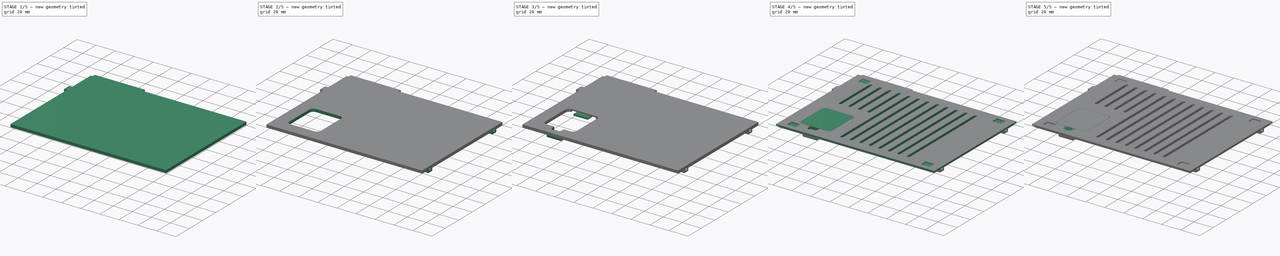
[diagram: build sequence overview — one tinted view per stage of 5, left to right]
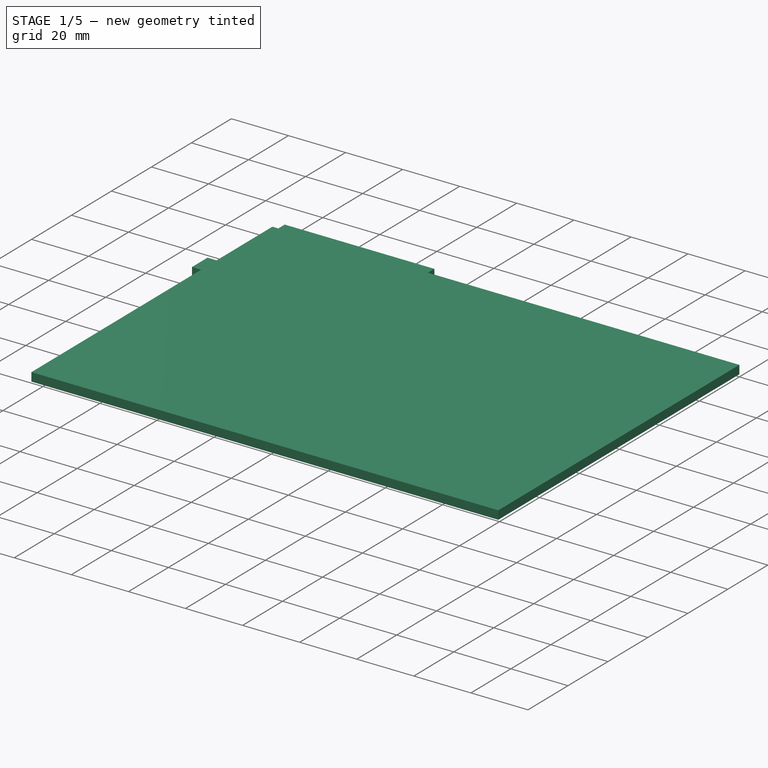
[diagram: stage 1 of 5 — iso view after this stage's code; geometry added in this stage tinted green]
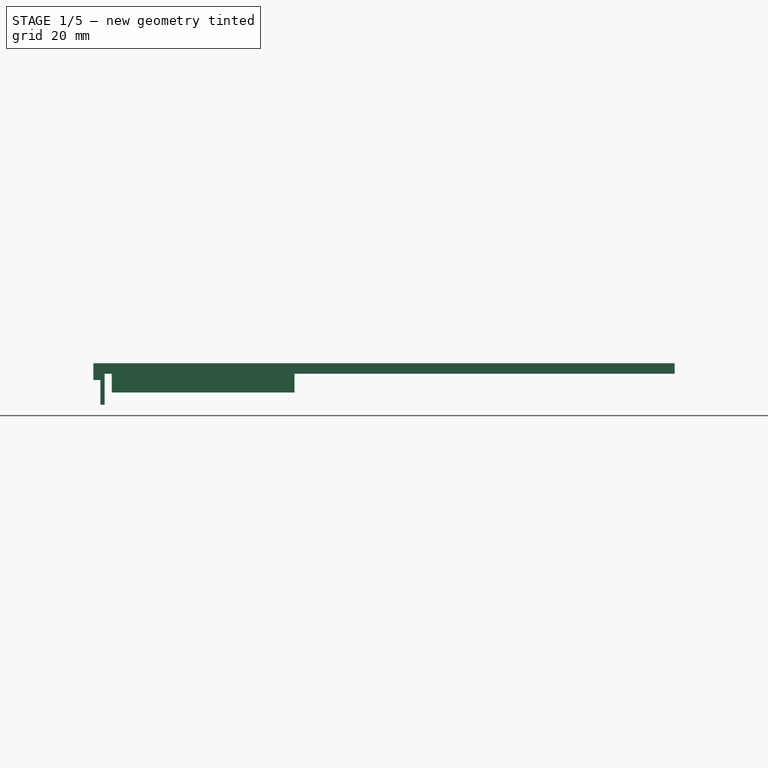
[diagram: stage 1 of 5 — front view after this stage's code; geometry added in this stage tinted green]
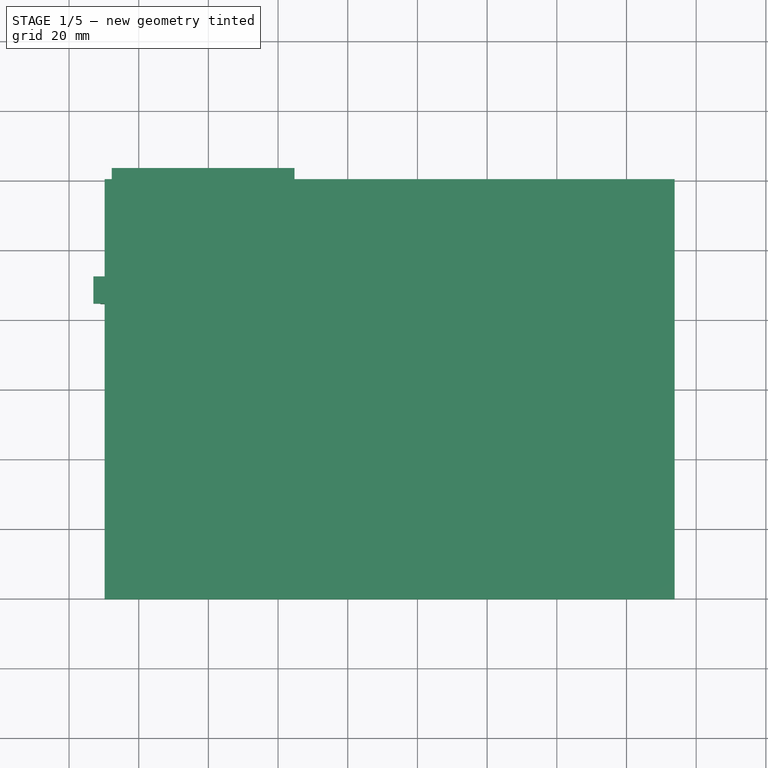
[diagram: stage 1 of 5 — top view after this stage's code; geometry added in this stage tinted green]
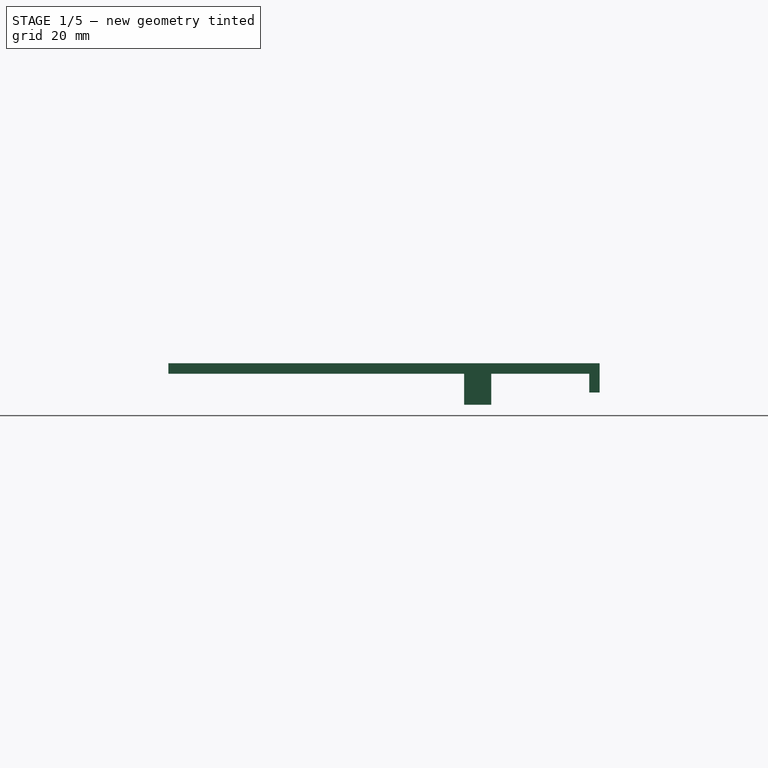
[diagram: stage 1 of 5 — right view after this stage's code; geometry added in this stage tinted green]
FCSTD DOCUMENT  (FreeCAD 2024.1R35694 (Git))
Label: case
License: All rights reserved
LicenseURL: https://en.wikipedia.org/wiki/All_rights_reserved
objects: Part::Feature×98, App::Part×78, Sketcher::SketchObject×43, PartDesign::Pocket×28, PartDesign::Pad×15, PartDesign::Fillet×4, PartDesign::Body×4, Part::Part2DObjectPython×1
note: 240 computed .brp shape members not serialized (recipe doc carries the construction recipe); baked Part::Feature solids carry a one-line shape summary decoded from their .brp

FEATURE [Sketcher::SketchObject] Sketch  label="outside cube"
  FullyConstrained = true
  MapMode = 5
  Support = -> [XY_Plane]
  sketch-geometry (4):
    g0: LineSegment StartX=-93 StartY=63.5 StartZ=0 EndX=77 EndY=63.5 EndZ=0
    g1: LineSegment StartX=77 StartY=63.5 StartZ=0 EndX=77 EndY=-63.5 EndZ=0
    g2: LineSegment StartX=77 StartY=-63.5 StartZ=0 EndX=-93 EndY=-63.5 EndZ=0
    g3: LineSegment StartX=-93 StartY=-63.5 StartZ=0 EndX=-93 EndY=63.5 EndZ=0
  constraints (12):
    c: Coincident(g0,g1)
    c: Coincident(g1,g2)
    c: Coincident(g2,g3)
    c: Coincident(g3,g0)
    c: Horizontal(g0)
    c: Horizontal(g2)
    c: Vertical(g1)
    c: Vertical(g3)
    c: DistanceX(g0,g0) = 170
    c: DistanceY(g1,g1) = 127
    c: DistanceX(g-1,g0) = 77
    c: DistanceY(g-1,g0) = 63.5
FEATURE [PartDesign::Pad] Pad  label="Outside case cube"
  Direction = (0,0,1)
  Length = 38
  Length2 = 10
  Profile = -> Sketch
  ReferenceAxis = -> Sketch [N_Axis]
  Type = 0
  UseCustomVector = true
FEATURE [Sketcher::SketchObject] Sketch001  label="inside cube"
  FullyConstrained = true
  MapMode = 5
  Placement = pos=(0,0,38) rot=(0,0,1;0rad)
  sketch-geometry (4):
    g0: LineSegment StartX=-90 StartY=60.5 StartZ=0 EndX=74 EndY=60.5 EndZ=0
    g1: LineSegment StartX=74 StartY=60.5 StartZ=0 EndX=74 EndY=-60.5 EndZ=0
    g2: LineSegment StartX=74 StartY=-60.5 StartZ=0 EndX=-90 EndY=-60.5 EndZ=0
    g3: LineSegment StartX=-90 StartY=-60.5 StartZ=0 EndX=-90 EndY=60.5 EndZ=0
  constraints (12):
    c: Coincident(g0,g1)
    c: Coincident(g1,g2)
    c: Coincident(g2,g3)
    c: Coincident(g3,g0)
    c: Horizontal(g0)
    c: Horizontal(g2)
    c: Vertical(g1)
    c: Vertical(g3)
    c: DistanceX(g0,g0) = 164
    c: DistanceY(g3,g3) = 121
    c: DistanceY(g-1,g0) = 60.5
    c: DistanceX(g0,g-1) = 90
FEATURE [PartDesign::Pocket] Pocket  label="inside hole"
  BaseFeature = -> Pad
  Direction = (0,0,-1)
  Length = 35
  Length2 = 5
  Profile = -> Sketch001
  ReferenceAxis = -> Sketch001 [N_Axis]
  Type = 0
FEATURE [Sketcher::SketchObject] Sketch002  label="Top Holes Sketch"
  FullyConstrained = true
  MapMode = 5
  Placement = pos=(0,0,0) rot=(1,0,0;3.14159rad)
  Support = -> [Pocket]
  sketch-geometry (28):
    g0: Circle CenterX=-74.5 CenterY=32.5 CenterZ=0 NormalX=0 NormalY=0 NormalZ=1 AngleXU=0 Radius=4
    g1: Circle CenterX=-74.5 CenterY=11.5 CenterZ=0 NormalX=0 NormalY=0 NormalZ=1 AngleXU=0 Radius=4
    g2: Circle CenterX=-74.5 CenterY=-9.5 CenterZ=0 NormalX=0 NormalY=0 NormalZ=1 AngleXU=0 Radius=4
    g3: Circle CenterX=-74.5 CenterY=-30.5 CenterZ=0 NormalX=0 NormalY=0 NormalZ=1 AngleXU=0 Radius=4
    g4: Circle CenterX=-36.25 CenterY=48.5 CenterZ=0 NormalX=0 NormalY=0 NormalZ=1 AngleXU=0 Radius=2.1
    g5: Circle CenterX=-22.25 CenterY=48.5 CenterZ=0 NormalX=0 NormalY=0 NormalZ=1 AngleXU=0 Radius=2.1
    g6: Circle CenterX=-29.25 CenterY=53.5 CenterZ=0 NormalX=0 NormalY=0 NormalZ=1 AngleXU=0 Radius=2.1
    g7: Circle CenterX=-29.25 CenterY=43.5 CenterZ=0 NormalX=0 NormalY=0 NormalZ=1 AngleXU=0 Radius=2.1
    g8: LineSegment StartX=-60.5545 StartY=39 StartZ=0 EndX=60.5545 EndY=39 EndZ=0
    g9: LineSegment StartX=60.5545 StartY=39 StartZ=0 EndX=60.5545 EndY=-37.2 EndZ=0
    g10: LineSegment StartX=60.5545 StartY=-37.2 StartZ=0 EndX=-60.5545 EndY=-37.2 EndZ=0
    g11: LineSegment StartX=-60.5545 StartY=-37.2 StartZ=0 EndX=-60.5545 EndY=39 EndZ=0
    g12: Circle CenterX=-46.25 CenterY=48.5 CenterZ=0 NormalX=0 NormalY=0 NormalZ=1 AngleXU=0 Radius=2.1
    g13: Circle CenterX=-12.25 CenterY=48.5 CenterZ=0 NormalX=0 NormalY=0 NormalZ=1 AngleXU=0 Radius=2.1
    g14: Circle CenterX=51 CenterY=53.5 CenterZ=0 NormalX=0 NormalY=0 NormalZ=1 AngleXU=0 Radius=2.1
    g15: Circle CenterX=41 CenterY=53.5 CenterZ=0 NormalX=0 NormalY=0 NormalZ=1 AngleXU=0 Radius=2.1
    g16: Circle CenterX=31 CenterY=53.5 CenterZ=0 NormalX=0 NormalY=0 NormalZ=1 AngleXU=0 Radius=2.1
    g17: Circle CenterX=41 CenterY=45.5 CenterZ=0 NormalX=0 NormalY=0 NormalZ=1 AngleXU=0 Radius=2.1
    g18: Circle CenterX=31 CenterY=45.5 CenterZ=0 NormalX=0 NormalY=0 NormalZ=1 AngleXU=0 Radius=2.1
    g19: Circle CenterX=66 CenterY=49 CenterZ=0 NormalX=0 NormalY=0 NormalZ=1 AngleXU=0 Radius=2.1
    g20: Circle CenterX=67 CenterY=32.5 CenterZ=0 NormalX=0 NormalY=0 NormalZ=1 AngleXU=0 Radius=2.1
    g21: Circle CenterX=67 CenterY=11.5 CenterZ=0 NormalX=0 NormalY=0 NormalZ=1 AngleXU=0 Radius=2.1
    g22: Circle CenterX=67 CenterY=-9.5 CenterZ=0 NormalX=0 NormalY=0 NormalZ=1 AngleXU=0 Radius=2.1
    g23: Circle CenterX=67 CenterY=-30.5 CenterZ=0 NormalX=0 NormalY=0 NormalZ=1 AngleXU=0 Radius=2.1
    g24: Circle CenterX=31.5 CenterY=-49 CenterZ=0 NormalX=0 NormalY=0 NormalZ=1 AngleXU=0 Radius=2.1
    g25: Circle CenterX=41.5 CenterY=-49 CenterZ=0 NormalX=0 NormalY=0 NormalZ=1 AngleXU=0 Radius=2.1
    g26: Circle CenterX=51.5 CenterY=-49 CenterZ=0 NormalX=0 NormalY=0 NormalZ=1 AngleXU=0 Radius=2.1
    g27: Circle CenterX=61.5 CenterY=-49 CenterZ=0 NormalX=0 NormalY=0 NormalZ=1 AngleXU=0 Radius=2.1
  constraints (84):
    c: Diameter(g0) = 8
    c: Diameter(g1) = 8
    c: Diameter(g2) = 8
    c: Diameter(g3) = 8
    c: Diameter(g4) = 4.2
    c: Diameter(g5) = 4.2
    c: Diameter(g6) = 4.2
    c: DistanceX(g0,g-1) = 74.5
    c: DistanceX(g1,g-1) = 74.5
    c: DistanceX(g2,g-1) = 74.5
    c: DistanceX(g3,g-1) = 74.5
    c: DistanceY(g-1,g0) = 32.5
    c: DistanceY(g-1,g1) = 11.5
    c: DistanceY(g2,g-1) = 9.5
    c: DistanceY(g3,g-1) = 30.5
    c: DistanceY(g-1,g4) = 48.5
    c: DistanceY(g-1,g5) = 48.5
    c: DistanceY(g-1,g6) = 53.5
    c: DistanceX(g4,g-1) = 36.25
    c: DistanceX(g-1,g5) = -22.25
    c: DistanceX(g-1,g6) = -29.25
    c: Diameter(g7) = 4.2
    c: DistanceY(g-1,g7) = 43.5
    c: DistanceX(g-1,g7) = -29.25
    c: Coincident(g8,g9)
    c: Coincident(g9,g10)
    c: Coincident(g10,g11)
    c: Coincident(g11,g8)
    c: Horizontal(g8)
    c: Horizontal(g10)
    c: Vertical(g9)
    c: Vertical(g11)
    c: DistanceX(g8,g8) = 121.109
    c: DistanceY(g9,g9) = 76.2
    c: DistanceX(g8,g-1) = 60.5545
    c: DistanceY(g9,g-1) = 37.2
    c: Diameter(g12) = 4.2
    c: DistanceX(g12,g-1) = 46.25
    c: DistanceY(g-1,g12) = 48.5
    c: Diameter(g13) = 4.2
    c: DistanceY(g-1,g13) = 48.5
    c: DistanceX(g-1,g13) = -12.25
    c: Diameter(g14) = 4.2
    c: DistanceY(g-1,g14) = 53.5
    c: DistanceX(g-1,g14) = 51
    c: Diameter(g15) = 4.2
    c: Diameter(g16) = 4.2
    c: Diameter(g18) = 4.2
    c: Diameter(g17) = 4.2
    c: DistanceY(g-1,g15) = 53.5
    c: DistanceY(g-1,g16) = 53.5
    c: DistanceY(g-1,g18) = 45.5
    c: DistanceY(g-1,g17) = 45.5
    c: DistanceX(g-1,g15) = 41
    c: DistanceX(g-1,g16) = 31
    c: DistanceX(g-1,g17) = 41
    c: DistanceX(g-1,g18) = 31
    c: Diameter(g19) = 4.2
    c: DistanceX(g-1,g19) = 66
    c: DistanceY(g-1,g19) = 49
    c: Diameter(g20) = 4.2
    c: Diameter(g21) = 4.2
    c: Diameter(g22) = 4.2
    c: Diameter(g23) = 4.2
    c: Diameter(g27) = 4.2
    c: Diameter(g26) = 4.2
    c: Diameter(g25) = 4.2
    c: Diameter(g24) = 4.2
    c: DistanceY(g-1,g20) = 32.5
    c: DistanceY(g-1,g21) = 11.5
    c: DistanceY(g-1,g22) = -9.5
    c: DistanceY(g23,g-1) = 30.5
    c: DistanceX(g-1,g22) = 67
    c: DistanceX(g-1,g21) = 67
    c: DistanceX(g-1,g20) = 67
    c: DistanceX(g-1,g23) = 67
    c: DistanceY(g27,g-1) = 49
    c: DistanceY(g26,g-1) = 49
    c: DistanceX(g-1,g27) = 61.5
    c: DistanceX(g-1,g26) = 51.5
    c: DistanceX(g-1,g25) = 41.5
    c: DistanceX(g-1,g24) = 31.5
    c: DistanceY(g25,g-1) = 49
    c: DistanceY(g24,g-1) = 49
FEATURE [Part::Feature] Part__Feature071  label="Raspberry Pi 4 B"
  shape: bbox 17 x 13.1 x 16 mm, 16 faces, 0 solids (baked)
FEATURE [Part::Feature] Part__Feature072  label="Raspberry Pi 4 B001"
  shape: bbox 17 x 13.1 x 15.99 mm, 16 faces, 0 solids (baked)
FEATURE [Part::Feature] Part__Feature073  label="Raspberry Pi 4 B002"
  shape: bbox 4 x 23 x 5.497 mm, 14 faces, 0 solids (baked)
FEATURE [Part::Feature] Part__Feature074  label="Raspberry Pi 4 B003"
  shape: bbox 9 x 8 x 3.3 mm, 6 faces, 0 solids (baked)
FEATURE [Part::Feature] Part__Feature075  label="Raspberry Pi 4 B004"
  shape: bbox 13.69 x 10.28 x 1.67 mm, 6 faces, 0 solids (baked)
FEATURE [Part::Feature] Part__Feature076  label="Raspberry Pi 4 B005"
  shape: bbox 13.69 x 10.28 x 1.67 mm, 6 faces, 0 solids (baked)
FEATURE [Part::Feature] Part__Feature077  label="Raspberry Pi 4 B006"
  shape: bbox 13.69 x 10.28 x 1.669 mm, 6 faces, 0 solids (baked)
FEATURE [Part::Feature] Part__Feature078  label="Raspberry Pi 4 B007"
  shape: bbox 13.69 x 10.28 x 1.669 mm, 6 faces, 0 solids (baked)
FEATURE [Part::Feature] Part__Feature079  label="Raspberry Pi 4 B008"
  shape: bbox 7.1 x 8 x 3 mm, 6 faces, 0 solids (baked)
FEATURE [Part::Feature] Part__Feature080  label="Raspberry Pi 4 B009"
  shape: bbox 7.1 x 8 x 3 mm, 6 faces, 0 solids (baked)
FEATURE [Part::Feature] Part__Feature081  label="Raspberry Pi 4 B010"
  shape: bbox 5.975 x 2.577 x 5.974 mm, 22 faces, 0 solids (baked)
FEATURE [Part::Feature] Part__Feature082  label="Raspberry Pi 4 B011"
  shape: bbox 6.2 x 6.2 x 1.6 mm, 42 faces, 0 solids (baked)
FEATURE [Part::Feature] Part__Feature083  label="Raspberry Pi 4 B012"
  shape: bbox 6.2 x 6.2 x 1.6 mm, 42 faces, 0 solids (baked)
FEATURE [Part::Feature] Part__Feature084  label="Raspberry Pi 4 B013"
  shape: bbox 6.2 x 6.2 x 1.598 mm, 42 faces, 0 solids (baked)
FEATURE [Part::Feature] Part__Feature085  label="Raspberry Pi 4 B014"
  shape: bbox 0.002562 x 0.001954 x 0.2012 mm, 2 faces, 0 solids (baked)
FEATURE [Part::Feature] Part__Feature086  label="Raspberry Pi 4 B015"
  shape: bbox 21 x 15.9 x 13.5 mm, 20 faces, 0 solids (baked)
FEATURE [Part::Feature] Part__Feature087  label="Raspberry Pi 4 B016"
  shape: bbox 16.51 x 2e-07 x 0.002 mm, 1 faces, 0 solids (baked)
FEATURE [Part::Feature] Part__Feature088  label="Raspberry Pi 4 B017"
  shape: bbox 0.06294 x 0.175 x 0.002 mm, 1 faces, 0 solids (baked)
FEATURE [Part::Feature] Part__Feature089  label="Raspberry Pi 4 B018"
  shape: bbox 0.005581 x 0.001641 x 2e-07 mm, 1 faces, 0 solids (baked)
FEATURE [Part::Feature] Part__Feature090  label="Raspberry Pi 4 B019"
  shape: bbox 85.06 x 56.06 x 11.56 mm, 1048 faces, 0 solids (baked)
FEATURE [Part::Feature] Part__Feature091  label="Raspberry Pi 4 B020"
  shape: bbox 0.6589 x 0.2508 x 0.003676 mm, 2 faces, 0 solids (baked)
FEATURE [App::Part] Raspberry_Pi_4_B  label="Raspberry Pi 4 B021"
  Group = -> [Part__Feature071,Part__Feature072,Part__Feature073,Part__Feature074,Part__Feature075,Part__Feature076,Part__Feature077,Part__Feature078,Part__Feature079,Part__Feature080,Part__Feature081,Part__Feature082,Part__Feature083,Part__Feature084,Part__Feature085,Part__Feature086,Part__Feature087,Part__Feature088,Part__Feature089,Part__Feature090,Part__Feature091]
  Origin = -> Origin044
  Placement = pos=(-75.5,22,32.2) rot=(1,1,0;3.14159rad)
  expr: .Placement.Rotation.Axis.z = 0
FEATURE [PartDesign::Fillet] Fillet  label="Inner top fillet"
  Base = -> Pocket [Edge24]
  BaseFeature = -> Pocket
  Radius = 3
  SupportTransform = false
  UseAllEdges = false
FEATURE [PartDesign::Fillet] Fillet001  label="inner bottom fillet"
  Base = -> Fillet [Edge18]
  BaseFeature = -> Fillet
  Radius = 3
  SupportTransform = false
  UseAllEdges = false
FEATURE [PartDesign::Fillet] Fillet002  label="outside top fillet"
  Base = -> Fillet001 [Edge30]
  BaseFeature = -> Fillet001
  Radius = 5
  SupportTransform = false
  UseAllEdges = false
FEATURE [PartDesign::Fillet] Fillet003  label="outside bottom filet"
  Base = -> Fillet002 [Edge18]
  BaseFeature = -> Fillet002
  Radius = 5
  SupportTransform = false
  UseAllEdges = false
FEATURE [Sketcher::SketchObject] Sketch008
  FullyConstrained = true
  MapMode = 5
  Placement = pos=(0,0,3) rot=(0,0,1;0rad)
  sketch-geometry (4):
    g0: LineSegment StartX=-83 StartY=38 StartZ=0 EndX=-66.5 EndY=38 EndZ=0
    g1: LineSegment StartX=-66.5 StartY=38 StartZ=0 EndX=-66.5 EndY=-40 EndZ=0
    g2: LineSegment StartX=-66.5 StartY=-40 StartZ=0 EndX=-83 EndY=-40 EndZ=0
    g3: LineSegment StartX=-83 StartY=-40 StartZ=0 EndX=-83 EndY=38 EndZ=0
  constraints (12):
    c: Coincident(g0,g1)
    c: Coincident(g1,g2)
    c: Coincident(g2,g3)
    c: Coincident(g3,g0)
    c: Horizontal(g0)
    c: Horizontal(g2)
    c: Vertical(g1)
    c: Vertical(g3)
    c: DistanceX(g0,g0) = 16.5
    c: DistanceY(g1,g1) = 78
    c: DistanceY(g-1,g0) = 38
    c: DistanceX(g0,g-1) = 66.5
FEATURE [PartDesign::Pad] Pad001  label="Encoder base"
  BaseFeature = -> Fillet003
  Direction = (0,0,1)
  Length = 0.5
  Length2 = 10
  Profile = -> Sketch008
  ReferenceAxis = -> Sketch008 [N_Axis]
  Type = 0
FEATURE [Sketcher::SketchObject] Sketch009
  FullyConstrained = true
  MapMode = 5
  Placement = pos=(0,0,0) rot=(1,0,0;3.14159rad)
  Support = -> [Pad001]
  sketch-geometry (4):
    g0: Circle CenterX=-74.5 CenterY=32.5 CenterZ=0 NormalX=0 NormalY=0 NormalZ=1 AngleXU=0 Radius=6.5
    g1: Circle CenterX=-74.5 CenterY=11.5 CenterZ=0 NormalX=0 NormalY=0 NormalZ=1 AngleXU=0 Radius=6.5
    g2: Circle CenterX=-74.5 CenterY=-9.5 CenterZ=0 NormalX=0 NormalY=0 NormalZ=1 AngleXU=0 Radius=6.5
    g3: Circle CenterX=-74.5 CenterY=-30.5 CenterZ=0 NormalX=0 NormalY=0 NormalZ=1 AngleXU=0 Radius=6.5
  constraints (12):
    c: DistanceX(g0,g-1) = 74.5
    c: DistanceY(g-1,g0) = 32.5
    c: Diameter(g0) = 13
    c: Diameter(g1) = 13
    c: Diameter(g2) = 13
    c: Diameter(g3) = 13
    c: DistanceX(g1,g-1) = 74.5
    c: DistanceX(g2,g-1) = 74.5
    c: DistanceX(g3,g-1) = 74.5
    c: DistanceY(g-1,g1) = 11.5
    c: DistanceY(g2,g-1) = 9.5
    c: DistanceY(g3,g-1) = 30.5
FEATURE [PartDesign::Pocket] Pocket007  label="Encoder pot spacers"
  BaseFeature = -> Pad001
  Direction = (0,0,1)
  Length = 2
  Length2 = 5
  Profile = -> Sketch009
  ReferenceAxis = -> Sketch009 [N_Axis]
  Type = 0
FEATURE [Part::Feature] Part__Feature  label="PinSocket_2x20_P254mm_Vertical"
  shape: bbox 5.08 x 50.8 x 10.1 mm, 1250 faces (baked)
FEATURE [App::Part] PinSocket_2x20_P2_54mm_Vertical  label="PinSocket_2x20_P2.54mm_Vertical"
  Group = -> [Part__Feature]
  Origin = -> Origin045
  Placement = pos=(-38.5,-17,1.65) rot=(0,0,1;3.14159rad)
FEATURE [Part::Feature] Part__Feature092  label="CP_Radial_D80mm_P350mm"
  shape: bbox 9.886 x 10.23 x 10 mm, 54 faces (baked)
FEATURE [App::Part] CP_Radial_D8_0mm_P3_50mm  label="CP_Radial_D8.0mm_P3.50mm"
  Group = -> [Part__Feature092]
  Origin = -> Origin046
  Placement = pos=(50.3,-24.8,1.65) rot=(0,0,-1;1.5708rad)
FEATURE [Part::Feature] Part__Feature093  label="C_Disc_D50mm_W25mm_P500mm"
  shape: bbox 5.5 x 2.5 x 7.1 mm, 10 faces (baked)
FEATURE [App::Part] C_Disc_D5_0mm_W2_5mm_P5_00mm  label="C_Disc_D5.0mm_W2.5mm_P5.00mm"
  Group = -> [Part__Feature093]
  Origin = -> Origin047
  Placement = pos=(-30.26,35,1.65) rot=(0,0,1;1.5708rad)
FEATURE [Part::Feature] Part__Feature094  label="C_Disc_D50mm_W25mm_P500mm001"
  shape: bbox 5.5 x 2.5 x 7.1 mm, 10 faces (baked)
FEATURE [App::Part] C_Disc_D5_0mm_W2_5mm_P5_00mm001  label="C_Disc_D5.0mm_W2.5mm_P5.00mm001"
  Group = -> [Part__Feature094]
  Origin = -> Origin048
  Placement = pos=(-27.46,35,1.65) rot=(0,0,1;1.5708rad)
FEATURE [Part::Feature] Part__Feature095  label="CP_Radial_D63mm_P250mm"
  shape: bbox 7.785 x 8.053 x 8.3 mm, 46 faces (baked)
FEATURE [App::Part] CP_Radial_D6_3mm_P2_50mm  label="CP_Radial_D6.3mm_P2.50mm"
  Group = -> [Part__Feature095]
  Origin = -> Origin049
  Placement = pos=(-33.7,-30.8176,1.65) rot=(0,0,-1;1.5708rad)
FEATURE [Part::Feature] Part__Feature096  label="C_Disc_D50mm_W25mm_P500mm002"
  shape: bbox 5.5 x 2.5 x 7.1 mm, 10 faces (baked)
FEATURE [App::Part] C_Disc_D5_0mm_W2_5mm_P5_00mm002  label="C_Disc_D5.0mm_W2.5mm_P5.00mm002"
  Group = -> [Part__Feature096]
  Origin = -> Origin050
  Placement = pos=(-24.46,40,1.65) rot=(0,0,-1;1.5708rad)
FEATURE [Part::Feature] Part__Feature097  label="D_DO-35_SOD27_P7.62mm_Horizontal"
  shape: bbox 8.244 x 2.165 x 5.082 mm, 16 faces, 2 solids (baked)
FEATURE [App::Part] D_DO_35_SOD27_P7_62mm_Horizontal  label="D_DO-35_SOD27_P7.62mm_Horizontal001"
  Group = -> [Part__Feature097]
  Origin = -> Origin051
  Placement = pos=(34.4,41.21,1.65) rot=(0,0,-1;1.5708rad)
FEATURE [Part::Feature] Part__Feature098  label="57PC5F"
  shape: bbox 20.38 x 24.55 x 15.49 mm, 388 faces (baked)
FEATURE [App::Part] midi_connector  label="midi-connector"
  Group = -> [Part__Feature098]
  Origin = -> Origin052
  Placement = pos=(-2.5,61,11.65) rot=(0,0.707107,0.707107;3.14159rad)
FEATURE [Part::Feature] Part__Feature099  label="57PC5F001"
  shape: bbox 20.38 x 24.55 x 15.49 mm, 388 faces (baked)
FEATURE [App::Part] midi_connector001  label="midi-connector001"
  Group = -> [Part__Feature099]
  Origin = -> Origin053
  Placement = pos=(17.5,61,11.65) rot=(0,0.707107,0.707107;3.14159rad)
FEATURE [Part::Feature] Part__Feature100  label="R_Axial_DIN0207_L63mm_D25mm_P762mm_Horizontal"
  shape: bbox 8.418 x 2.706 x 5.603 mm, 15 faces (baked)
FEATURE [App::Part] R_Axial_DIN0207_L6_3mm_D2_5mm_P7_62mm_Horizontal  label="R_Axial_DIN0207_L6.3mm_D2.5mm_P7.62mm_Horizontal"
  Group = -> [Part__Feature100]
  Origin = -> Origin054
  Placement = pos=(16.58,41.31,1.65) rot=(0,0,-1;1.5708rad)
FEATURE [Part::Feature] Part__Feature101  label="R_Axial_DIN0207_L63mm_D25mm_P762mm_Horizontal001"
  shape: bbox 8.418 x 2.706 x 5.603 mm, 15 faces (baked)
FEATURE [App::Part] R_Axial_DIN0207_L6_3mm_D2_5mm_P7_62mm_Horizontal001  label="R_Axial_DIN0207_L6.3mm_D2.5mm_P7.62mm_Horizontal001"
  Group = -> [Part__Feature101]
  Origin = -> Origin055
  Placement = pos=(13.48,33.69,1.65) rot=(0,0,1;1.5708rad)
FEATURE [Part::Feature] Part__Feature102  label="R_Axial_DIN0207_L63mm_D25mm_P762mm_Horizontal002"
  shape: bbox 8.418 x 2.706 x 5.603 mm, 15 faces (baked)
FEATURE [App::Part] R_Axial_DIN0207_L6_3mm_D2_5mm_P7_62mm_Horizontal002  label="R_Axial_DIN0207_L6.3mm_D2.5mm_P7.62mm_Horizontal002"
  Group = -> [Part__Feature102]
  Origin = -> Origin056
  Placement = pos=(27.3,5.9,1.65) rot=(0,0,-1;1.5708rad)
FEATURE [Part::Feature] Part__Feature103  label="R_Axial_DIN0207_L63mm_D25mm_P762mm_Horizontal003"
  shape: bbox 8.418 x 2.706 x 5.603 mm, 15 faces (baked)
FEATURE [App::Part] R_Axial_DIN0207_L6_3mm_D2_5mm_P7_62mm_Horizontal003  label="R_Axial_DIN0207_L6.3mm_D2.5mm_P7.62mm_Horizontal003"
  Group = -> [Part__Feature103]
  Origin = -> Origin057
  Placement = pos=(10.38,41.31,1.65) rot=(0,0,-1;1.5708rad)
FEATURE [Part::Feature] Part__Feature104  label="DIP-6_W7.62mm"
  shape: bbox 7.874 x 7.05 x 6.98 mm, 114 faces (baked)
FEATURE [App::Part] DIP_6_W7_62mm  label="DIP-6_W7.62mm001"
  Group = -> [Part__Feature104]
  Origin = -> Origin058
  Placement = pos=(29.905,41.3,1.65) rot=(0,0,-1;1.5708rad)
FEATURE [Part::Feature] Part__Feature105  label="DIP-14_W7.62mm"
  shape: bbox 7.874 x 19.05 x 6.98 mm, 250 faces (baked)
FEATURE [App::Part] DIP_14_W7_62mm  label="DIP-14_W7.62mm001"
  Group = -> [Part__Feature105]
  Origin = -> Origin059
  Placement = pos=(-16.42,33.7,1.65) rot=(0,0,1;1.5708rad)
FEATURE [Part::Feature] Part__Feature106  label="R_Axial_DIN0207_L63mm_D25mm_P762mm_Horizontal004"
  shape: bbox 8.418 x 2.706 x 5.603 mm, 15 faces (baked)
FEATURE [App::Part] R_Axial_DIN0207_L6_3mm_D2_5mm_P7_62mm_Horizontal004  label="R_Axial_DIN0207_L6.3mm_D2.5mm_P7.62mm_Horizontal004"
  Group = -> [Part__Feature106]
  Origin = -> Origin060
  Placement = pos=(19.58,41.31,1.65) rot=(0,0,-1;1.5708rad)
FEATURE [Part::Feature] Part__Feature107  label="union"
  shape: bbox 31.6 x 18 x 15.2 mm, 263 faces, 2 solids (baked)
FEATURE [App::Part] PCM5102_I2S  label="PCM5102-I2S"
  Group = -> [Part__Feature107]
  Origin = -> Origin061
  Placement = pos=(27.8,25.95,5.65) rot=(1,0,0;3.14159rad)
FEATURE [Part::Feature] Part__Feature108  label="RS-234"
  shape: bbox 27.23 x 22 x 21 mm, 648 faces, 9 solids (baked)
FEATURE [App::Part] RS_234  label="RS-235"
  Group = -> [Part__Feature108]
  Origin = -> Origin062
  Placement = pos=(76,28.8,1.65) rot=(0.57735,0.57735,0.57735;2.0944rad)
FEATURE [Part::Feature] Part__Feature109  label="PinHeader_2x20_P254mm_Vertical"
  shape: bbox 5.08 x 50.8 x 11.54 mm, 844 faces (baked)
FEATURE [App::Part] PinHeader_2x20_P2_54mm_Vertical  label="PinHeader_2x20_P2.54mm_Vertical"
  Group = -> [Part__Feature109]
  Origin = -> Origin063
  Placement = pos=(-26.7625,21.4,1.65) rot=(0,0,1;0rad)
FEATURE [Part::Feature] Part__Feature110  label="R_Axial_DIN0207_L63mm_D25mm_P762mm_Horizontal005"
  shape: bbox 8.418 x 2.706 x 5.603 mm, 15 faces (baked)
FEATURE [App::Part] R_Axial_DIN0207_L6_3mm_D2_5mm_P7_62mm_Horizontal005  label="R_Axial_DIN0207_L6.3mm_D2.5mm_P7.62mm_Horizontal005"
  Group = -> [Part__Feature110]
  Origin = -> Origin064
  Placement = pos=(21.175,-1.71,1.65) rot=(0,0,1;1.5708rad)
FEATURE [Part::Feature] Part__Feature111  label="DIP-28_W7.62mm"
  shape: bbox 7.874 x 35.56 x 6.98 mm, 488 faces (baked)
FEATURE [App::Part] DIP_28_W7_62mm  label="DIP-28_W7.62mm001"
  Group = -> [Part__Feature111]
  Origin = -> Origin065
  Placement = pos=(42,-31,1.65) rot=(0,0,1;3.14159rad)
FEATURE [Part::Feature] Part__Feature112  label="C_Disc_D30mm_W20mm_P250mm"
  shape: bbox 3 x 2 x 5.1 mm, 12 faces (baked)
FEATURE [App::Part] C_Disc_D3_0mm_W2_0mm_P2_50mm  label="C_Disc_D3.0mm_W2.0mm_P2.50mm"
  Group = -> [Part__Feature112]
  Origin = -> Origin066
  Placement = pos=(-85.025,-32.525,1.65) rot=(0,0,-1;1.5708rad)
FEATURE [Part::Feature] Part__Feature113  label="C_Disc_D30mm_W20mm_P250mm001"
  shape: bbox 3 x 2 x 5.1 mm, 12 faces (baked)
FEATURE [App::Part] C_Disc_D3_0mm_W2_0mm_P2_50mm001  label="C_Disc_D3.0mm_W2.0mm_P2.50mm001"
  Group = -> [Part__Feature113]
  Origin = -> Origin067
  Placement = pos=(-85.125,10.575,1.65) rot=(0,0,-1;1.5708rad)
FEATURE [Part::Feature] Part__Feature114  label="R_Axial_DIN0207_L63mm_D25mm_P762mm_Horizontal006"
  shape: bbox 8.418 x 2.706 x 5.603 mm, 15 faces (baked)
FEATURE [App::Part] R_Axial_DIN0207_L6_3mm_D2_5mm_P7_62mm_Horizontal006  label="R_Axial_DIN0207_L6.3mm_D2.5mm_P7.62mm_Horizontal006"
  Group = -> [Part__Feature114]
  Origin = -> Origin068
  Placement = pos=(7.38,33.7,1.65) rot=(0,0,1;1.5708rad)
FEATURE [Part::Feature] Part__Feature115  label="R_Axial_DIN0207_L63mm_D25mm_P762mm_Horizontal007"
  shape: bbox 8.418 x 2.706 x 5.603 mm, 15 faces (baked)
FEATURE [App::Part] R_Axial_DIN0207_L6_3mm_D2_5mm_P7_62mm_Horizontal007  label="R_Axial_DIN0207_L6.3mm_D2.5mm_P7.62mm_Horizontal007"
  Group = -> [Part__Feature115]
  Origin = -> Origin069
  Placement = pos=(24.2,-1.71,1.65) rot=(0,0,1;1.5708rad)
FEATURE [Part::Feature] Part__Feature116  label="57PC5F002"
  shape: bbox 20.38 x 24.55 x 15.49 mm, 388 faces (baked)
FEATURE [App::Part] midi_connector002  label="midi-connector002"
  Group = -> [Part__Feature116]
  Origin = -> Origin070
  Placement = pos=(-22.5,61,11.65) rot=(0,0.707107,0.707107;3.14159rad)
FEATURE [Part::Feature] Part__Feature117  label="DIP-28_W7.62mm002"
  shape: bbox 7.874 x 35.56 x 6.98 mm, 488 faces (baked)
FEATURE [App::Part] DIP_28_W7_62mm001  label="DIP-28_W7.62mm003"
  Group = -> [Part__Feature117]
  Origin = -> Origin071
  Placement = pos=(-85.98,-50.12,1.65) rot=(0,0,1;1.5708rad)
FEATURE [Part::Feature] Part__Feature118  label="C_Disc_D50mm_W25mm_P500mm003"
  shape: bbox 5.5 x 2.5 x 7.1 mm, 10 faces (baked)
FEATURE [App::Part] C_Disc_D5_0mm_W2_5mm_P5_00mm003  label="C_Disc_D5.0mm_W2.5mm_P5.00mm003"
  Group = -> [Part__Feature118]
  Origin = -> Origin072
  Placement = pos=(-14.8,-37.9,1.65) rot=(0,0,1;0rad)
FEATURE [Part::Feature] Part__Feature119  label="C_Disc_D30mm_W20mm_P250mm002"
  shape: bbox 3 x 2 x 5.1 mm, 12 faces (baked)
FEATURE [App::Part] C_Disc_D3_0mm_W2_0mm_P2_50mm002  label="C_Disc_D3.0mm_W2.0mm_P2.50mm002"
  Group = -> [Part__Feature119]
  Origin = -> Origin073
  Placement = pos=(-85.25,-9.8,1.65) rot=(0,0,-1;1.5708rad)
FEATURE [Part::Feature] Part__Feature120  label="NMJ6HFD2"
  shape: bbox 32.85 x 21.37 x 18.26 mm, 645 faces, 4 solids (baked)
FEATURE [App::Part] nmj6hfd2
  Group = -> [Part__Feature120]
  Origin = -> Origin074
  Placement = pos=(70,-11,9.65) rot=(1,0,0;1.5708rad)
FEATURE [Part::Feature] Part__Feature121  label="C_Disc_D30mm_W20mm_P250mm003"
  shape: bbox 3 x 2 x 5.1 mm, 12 faces (baked)
FEATURE [App::Part] C_Disc_D3_0mm_W2_0mm_P2_50mm003  label="C_Disc_D3.0mm_W2.0mm_P2.50mm003"
  Group = -> [Part__Feature121]
  Origin = -> Origin075
  Placement = pos=(-85.425,24.875,1.65) rot=(0,0,-1;1.5708rad)
FEATURE [Part::Feature] Part__Feature122  label="SW_PUSH_6mm"
  shape: bbox 7.174 x 6 x 7.8 mm, 105 faces (baked)
FEATURE [App::Part] SW_PUSH_6mm  label="SW_PUSH_6mm001"
  Group = -> [Part__Feature122]
  Origin = -> Origin076
  Placement = pos=(-27.05,-46.7,-0.05) rot=(0.707107,0.707107,0;3.14159rad)
FEATURE [Part::Feature] Part__Feature123  label="C_Disc_D30mm_W20mm_P250mm004"
  shape: bbox 3 x 2 x 5.1 mm, 12 faces (baked)
FEATURE [App::Part] C_Disc_D3_0mm_W2_0mm_P2_50mm004  label="C_Disc_D3.0mm_W2.0mm_P2.50mm004"
  Group = -> [Part__Feature123]
  Origin = -> Origin077
  Placement = pos=(61.8,-9.95,-0.05) rot=(0.707107,-0.707107,0;3.14159rad)
FEATURE [Part::Feature] Part__Feature124  label="C_Disc_D50mm_W25mm_P500mm004"
  shape: bbox 5.5 x 2.5 x 7.1 mm, 10 faces (baked)
FEATURE [App::Part] C_Disc_D5_0mm_W2_5mm_P5_00mm004  label="C_Disc_D5.0mm_W2.5mm_P5.00mm004"
  Group = -> [Part__Feature124]
  Origin = -> Origin078
  Placement = pos=(68.3,-23.8,-0.05) rot=(0,1,0;3.14159rad)
FEATURE [Part::Feature] Part__Feature125  label="C_Disc_D30mm_W20mm_P250mm005"
  shape: bbox 3 x 2 x 5.1 mm, 12 faces (baked)
FEATURE [App::Part] C_Disc_D3_0mm_W2_0mm_P2_50mm005  label="C_Disc_D3.0mm_W2.0mm_P2.50mm005"
  Group = -> [Part__Feature125]
  Origin = -> Origin079
  Placement = pos=(-23.75,-42,-0.05) rot=(0.707107,0.707107,0;3.14159rad)
FEATURE [Part::Feature] Part__Feature126  label="SW_PUSH_6mm002"
  shape: bbox 7.174 x 6 x 7.8 mm, 105 faces (baked)
FEATURE [App::Part] SW_PUSH_6mm001  label="SW_PUSH_6mm003"
  Group = -> [Part__Feature126]
  Origin = -> Origin080
  Placement = pos=(54.2,-51.3,-0.05) rot=(0,1,0;3.14159rad)
FEATURE [Part::Feature] Part__Feature127  label="C_Disc_D30mm_W20mm_P250mm006"
  shape: bbox 3 x 2 x 5.1 mm, 12 faces (baked)
FEATURE [App::Part] C_Disc_D3_0mm_W2_0mm_P2_50mm006  label="C_Disc_D3.0mm_W2.0mm_P2.50mm006"
  Group = -> [Part__Feature127]
  Origin = -> Origin081
  Placement = pos=(42.15,-40,-0.05) rot=(0,1,0;3.14159rad)
FEATURE [Part::Feature] Part__Feature128  label="C_Disc_D30mm_W20mm_P250mm007"
  shape: bbox 3 x 2 x 5.1 mm, 12 faces (baked)
FEATURE [App::Part] C_Disc_D3_0mm_W2_0mm_P2_50mm007  label="C_Disc_D3.0mm_W2.0mm_P2.50mm007"
  Group = -> [Part__Feature128]
  Origin = -> Origin082
  Placement = pos=(-37.25,-42.5,-0.05) rot=(1,0,0;3.14159rad)
FEATURE [Part::Feature] Part__Feature129  label="PEC11R-4215F-S0024"
  shape: bbox 13.86 x 25.2 x 14.7 mm, 319 faces, 9 solids (baked)
FEATURE [App::Part] rotary_encoder  label="rotary-encoder"
  Group = -> [Part__Feature129]
  Origin = -> Origin083
  Placement = pos=(-74.5,9.5,-6.55) rot=(-0.57735,-0.57735,0.57735;2.0944rad)
FEATURE [Part::Feature] Part__Feature130  label="C_Disc_D30mm_W20mm_P250mm008"
  shape: bbox 3 x 2 x 5.1 mm, 12 faces (baked)
FEATURE [App::Part] C_Disc_D3_0mm_W2_0mm_P2_50mm008  label="C_Disc_D3.0mm_W2.0mm_P2.50mm008"
  Group = -> [Part__Feature130]
  Origin = -> Origin084
  Placement = pos=(61.925,-28.7,-0.05) rot=(0.707107,-0.707107,0;3.14159rad)
FEATURE [Part::Feature] Part__Feature131  label="C_Disc_D30mm_W20mm_P250mm009"
  shape: bbox 3 x 2 x 5.1 mm, 12 faces (baked)
FEATURE [App::Part] C_Disc_D3_0mm_W2_0mm_P2_50mm009  label="C_Disc_D3.0mm_W2.0mm_P2.50mm009"
  Group = -> [Part__Feature131]
  Origin = -> Origin085
  Placement = pos=(50.275,55,-0.05) rot=(1,0,0;3.14159rad)
FEATURE [Part::Feature] Part__Feature132  label="SW_PUSH_6mm004"
  shape: bbox 7.174 x 6 x 7.8 mm, 105 faces (baked)
FEATURE [App::Part] SW_PUSH_6mm002  label="SW_PUSH_6mm005"
  Group = -> [Part__Feature132]
  Origin = -> Origin086
  Placement = pos=(64.8,-8.3,-0.05) rot=(0.707107,-0.707107,0;3.14159rad)
FEATURE [Part::Feature] Part__Feature133  label="PEC11R-4215F-S0025"
  shape: bbox 13.86 x 25.2 x 14.7 mm, 319 faces, 9 solids (baked)
FEATURE [App::Part] rotary_encoder001  label="rotary-encoder001"
  Group = -> [Part__Feature133]
  Origin = -> Origin087
  Placement = pos=(-74.5,-32.5,-6.55) rot=(-0.57735,-0.57735,0.57735;2.0944rad)
FEATURE [Part::Feature] Part__Feature134  label="SW_PUSH_6mm006"
  shape: bbox 7.174 x 6 x 7.8 mm, 105 faces (baked)
FEATURE [App::Part] SW_PUSH_6mm003  label="SW_PUSH_6mm007"
  Group = -> [Part__Feature134]
  Origin = -> Origin088
  Placement = pos=(64.8,-29.3,-0.05) rot=(0.707107,-0.707107,0;3.14159rad)
FEATURE [Part::Feature] Part__Feature135  label="C_Disc_D30mm_W20mm_P250mm010"
  shape: bbox 3 x 2 x 5.1 mm, 12 faces (baked)
FEATURE [App::Part] C_Disc_D3_0mm_W2_0mm_P2_50mm010  label="C_Disc_D3.0mm_W2.0mm_P2.50mm010"
  Group = -> [Part__Feature135]
  Origin = -> Origin089
  Placement = pos=(59.825,-51.15,-0.05) rot=(0.707107,0.707107,0;3.14159rad)
FEATURE [Part::Feature] Part__Feature136  label="C_Disc_D30mm_W20mm_P250mm011"
  shape: bbox 3 x 2 x 5.1 mm, 12 faces (baked)
FEATURE [App::Part] C_Disc_D3_0mm_W2_0mm_P2_50mm011  label="C_Disc_D3.0mm_W2.0mm_P2.50mm011"
  Group = -> [Part__Feature136]
  Origin = -> Origin090
  Placement = pos=(-11,-43.5,-0.05) rot=(0,1,0;3.14159rad)
FEATURE [Part::Feature] Part__Feature137  label="C_Disc_D30mm_W20mm_P250mm012"
  shape: bbox 3 x 2 x 5.1 mm, 12 faces (baked)
FEATURE [App::Part] C_Disc_D3_0mm_W2_0mm_P2_50mm012  label="C_Disc_D3.0mm_W2.0mm_P2.50mm012"
  Group = -> [Part__Feature137]
  Origin = -> Origin091
  Placement = pos=(-45,-43.5,-0.05) rot=(0,1,0;3.14159rad)
FEATURE [Part::Feature] Part__Feature138  label="SW_PUSH_6mm008"
  shape: bbox 7.174 x 6 x 7.8 mm, 105 faces (baked)
FEATURE [App::Part] SW_PUSH_6mm004  label="SW_PUSH_6mm009"
  Group = -> [Part__Feature138]
  Origin = -> Origin092
  Placement = pos=(44.2,-43.3,-0.05) rot=(0,1,0;3.14159rad)
FEATURE [Part::Feature] Part__Feature139  label="C_Disc_D30mm_W20mm_P250mm013"
  shape: bbox 3 x 2 x 5.1 mm, 12 faces (baked)
FEATURE [App::Part] C_Disc_D3_0mm_W2_0mm_P2_50mm013  label="C_Disc_D3.0mm_W2.0mm_P2.50mm013"
  Group = -> [Part__Feature139]
  Origin = -> Origin093
  Placement = pos=(32.65,55,-0.05) rot=(0,1,0;3.14159rad)
FEATURE [Part::Feature] Part__Feature140  label="C_Disc_D30mm_W20mm_P250mm014"
  shape: bbox 3 x 2 x 5.1 mm, 12 faces (baked)
FEATURE [App::Part] C_Disc_D3_0mm_W2_0mm_P2_50mm014  label="C_Disc_D3.0mm_W2.0mm_P2.50mm014"
  Group = -> [Part__Feature140]
  Origin = -> Origin094
  Placement = pos=(40.2,55,-0.05) rot=(1,0,0;3.14159rad)
FEATURE [Part::Feature] Part__Feature141  label="SW_PUSH_6mm010"
  shape: bbox 7.174 x 6 x 7.8 mm, 105 faces (baked)
FEATURE [App::Part] SW_PUSH_6mm005  label="SW_PUSH_6mm011"
  Group = -> [Part__Feature141]
  Origin = -> Origin095
  Placement = pos=(44.2,-51.3,-0.05) rot=(0,1,0;3.14159rad)
FEATURE [Part::Feature] Part__Feature142  label="C_Disc_D30mm_W20mm_P250mm015"
  shape: bbox 3 x 2 x 5.1 mm, 12 faces (baked)
FEATURE [App::Part] C_Disc_D3_0mm_W2_0mm_P2_50mm015  label="C_Disc_D3.0mm_W2.0mm_P2.50mm015"
  Group = -> [Part__Feature142]
  Origin = -> Origin096
  Placement = pos=(62,10.75,-0.05) rot=(0.707107,-0.707107,0;3.14159rad)
FEATURE [Part::Feature] Part__Feature143  label="SW_PUSH_6mm012"
  shape: bbox 7.174 x 6 x 7.8 mm, 105 faces (baked)
FEATURE [App::Part] SW_PUSH_6mm006  label="SW_PUSH_6mm013"
  Group = -> [Part__Feature143]
  Origin = -> Origin097
  Placement = pos=(63.8,28.3,-0.05) rot=(1,0,0;3.14159rad)
FEATURE [Part::Feature] Part__Feature144  label="SW_PUSH_6mm014"
  shape: bbox 7.174 x 6 x 7.8 mm, 105 faces (baked)
FEATURE [App::Part] SW_PUSH_6mm007  label="SW_PUSH_6mm015"
  Group = -> [Part__Feature144]
  Origin = -> Origin098
  Placement = pos=(49.3,52.2,-0.05) rot=(0.707107,-0.707107,0;3.14159rad)
FEATURE [Part::Feature] Part__Feature145  label="C_Disc_D30mm_W20mm_P250mm016"
  shape: bbox 3 x 2 x 5.1 mm, 12 faces (baked)
FEATURE [App::Part] C_Disc_D3_0mm_W2_0mm_P2_50mm016  label="C_Disc_D3.0mm_W2.0mm_P2.50mm016"
  Group = -> [Part__Feature145]
  Origin = -> Origin099
  Placement = pos=(-34.25,-55,-0.05) rot=(0.707107,-0.707107,0;3.14159rad)
FEATURE [Part::Feature] Part__Feature146  label="C_Disc_D30mm_W20mm_P250mm017"
  shape: bbox 3 x 2 x 5.1 mm, 12 faces (baked)
FEATURE [App::Part] C_Disc_D3_0mm_W2_0mm_P2_50mm017  label="C_Disc_D3.0mm_W2.0mm_P2.50mm017"
  Group = -> [Part__Feature146]
  Origin = -> Origin100
  Placement = pos=(60.2,29.2,-0.05) rot=(0.707107,0.707107,0;3.14159rad)
FEATURE [Part::Feature] Part__Feature147  label="PEC11R-4215F-S0026"
  shape: bbox 13.86 x 25.2 x 14.7 mm, 319 faces, 9 solids (baked)
FEATURE [App::Part] rotary_encoder002  label="rotary-encoder002"
  Group = -> [Part__Feature147]
  Origin = -> Origin101
  Placement = pos=(-74.5,30.5,-6.55) rot=(-0.57735,-0.57735,0.57735;2.0944rad)
FEATURE [Part::Feature] Part__Feature148  label="C_Disc_D30mm_W20mm_P250mm018"
  shape: bbox 3 x 2 x 5.1 mm, 12 faces (baked)
FEATURE [App::Part] C_Disc_D3_0mm_W2_0mm_P2_50mm018  label="C_Disc_D3.0mm_W2.0mm_P2.50mm018"
  Group = -> [Part__Feature148]
  Origin = -> Origin102
  Placement = pos=(-21,-55,-0.05) rot=(0,1,0;3.14159rad)
FEATURE [Part::Feature] Part__Feature149  label="SW_PUSH_6mm016"
  shape: bbox 7.174 x 6 x 7.8 mm, 105 faces (baked)
FEATURE [App::Part] SW_PUSH_6mm008  label="SW_PUSH_6mm017"
  Group = -> [Part__Feature149]
  Origin = -> Origin103
  Placement = pos=(-24.45,-45.3,-0.05) rot=(0.707107,-0.707107,0;3.14159rad)
FEATURE [Part::Feature] Part__Feature150  label="C_Disc_D30mm_W20mm_P250mm019"
  shape: bbox 3 x 2 x 5.1 mm, 12 faces (baked)
FEATURE [App::Part] C_Disc_D3_0mm_W2_0mm_P2_50mm019  label="C_Disc_D3.0mm_W2.0mm_P2.50mm019"
  Group = -> [Part__Feature150]
  Origin = -> Origin104
  Placement = pos=(60.475,55,-0.05) rot=(1,0,0;3.14159rad)
FEATURE [Part::Feature] Part__Feature151  label="SW_PUSH_6mm018"
  shape: bbox 7.174 x 6 x 7.8 mm, 105 faces (baked)
FEATURE [App::Part] SW_PUSH_6mm009  label="SW_PUSH_6mm019"
  Group = -> [Part__Feature151]
  Origin = -> Origin105
  Placement = pos=(33.7,45.8,-0.05) rot=(0.707107,0.707107,0;3.14159rad)
FEATURE [Part::Feature] Part__Feature152  label="SW_PUSH_6mm020"
  shape: bbox 7.174 x 6 x 7.8 mm, 105 faces (baked)
FEATURE [App::Part] SW_PUSH_6mm010  label="SW_PUSH_6mm021"
  Group = -> [Part__Feature152]
  Origin = -> Origin106
  Placement = pos=(64.8,12.7,-0.05) rot=(0.707107,-0.707107,0;3.14159rad)
FEATURE [Part::Feature] Part__Feature153  label="SW_PUSH_6mm022"
  shape: bbox 7.174 x 6 x 7.8 mm, 105 faces (baked)
FEATURE [App::Part] SW_PUSH_6mm011  label="SW_PUSH_6mm023"
  Group = -> [Part__Feature153]
  Origin = -> Origin107
  Placement = pos=(-38.45,-45.3,-0.05) rot=(0.707107,-0.707107,0;3.14159rad)
FEATURE [Part::Feature] Part__Feature154  label="SW_PUSH_6mm024"
  shape: bbox 7.174 x 6 x 7.8 mm, 105 faces (baked)
FEATURE [App::Part] SW_PUSH_6mm012  label="SW_PUSH_6mm025"
  Group = -> [Part__Feature154]
  Origin = -> Origin108
  Placement = pos=(62.8,-51.2,-0.05) rot=(1,0,0;3.14159rad)
FEATURE [Part::Feature] Part__Feature155  label="C_Disc_D30mm_W20mm_P250mm020"
  shape: bbox 3 x 2 x 5.1 mm, 12 faces (baked)
FEATURE [App::Part] C_Disc_D3_0mm_W2_0mm_P2_50mm020  label="C_Disc_D3.0mm_W2.0mm_P2.50mm020"
  Group = -> [Part__Feature155]
  Origin = -> Origin109
  Placement = pos=(57.5,-53.5,-0.05) rot=(0.707107,-0.707107,0;3.14159rad)
FEATURE [Part::Feature] Part__Feature156  label="SW_PUSH_6mm026"
  shape: bbox 7.174 x 6 x 7.8 mm, 105 faces (baked)
FEATURE [App::Part] SW_PUSH_6mm013  label="SW_PUSH_6mm027"
  Group = -> [Part__Feature156]
  Origin = -> Origin110
  Placement = pos=(59.3,52.2,-0.05) rot=(0.707107,-0.707107,0;3.14159rad)
FEATURE [Part::Feature] Part__Feature157  label="C_Disc_D30mm_W20mm_P250mm021"
  shape: bbox 3 x 2 x 5.1 mm, 12 faces (baked)
FEATURE [App::Part] C_Disc_D3_0mm_W2_0mm_P2_50mm021  label="C_Disc_D3.0mm_W2.0mm_P2.50mm021"
  Group = -> [Part__Feature157]
  Origin = -> Origin111
  Placement = pos=(24.5,-52.75,-0.05) rot=(0.707107,-0.707107,0;3.14159rad)
FEATURE [Part::Feature] Part__Feature158  label="SW_PUSH_6mm028"
  shape: bbox 7.174 x 6 x 7.8 mm, 105 faces (baked)
FEATURE [App::Part] SW_PUSH_6mm014  label="SW_PUSH_6mm029"
  Group = -> [Part__Feature158]
  Origin = -> Origin112
  Placement = pos=(-15.45,-50.7,-0.05) rot=(1,0,0;3.14159rad)
FEATURE [Part::Feature] Part__Feature159  label="SW_PUSH_6mm030"
  shape: bbox 7.174 x 6 x 7.8 mm, 105 faces (baked)
FEATURE [App::Part] SW_PUSH_6mm015  label="SW_PUSH_6mm031"
  Group = -> [Part__Feature159]
  Origin = -> Origin113
  Placement = pos=(-31.45,-50.3,-0.05) rot=(0.707107,-0.707107,0;3.14159rad)
FEATURE [Part::Feature] Part__Feature160  label="SW_PUSH_6mm032"
  shape: bbox 7.174 x 6 x 7.8 mm, 105 faces (baked)
FEATURE [App::Part] SW_PUSH_6mm016  label="SW_PUSH_6mm033"
  Group = -> [Part__Feature160]
  Origin = -> Origin114
  Placement = pos=(-49.45,-50.7,-0.05) rot=(1,0,0;3.14159rad)
FEATURE [Part::Feature] Part__Feature161  label="SW_PUSH_6mm034"
  shape: bbox 7.174 x 6 x 7.8 mm, 105 faces (baked)
FEATURE [App::Part] SW_PUSH_6mm017  label="SW_PUSH_6mm035"
  Group = -> [Part__Feature161]
  Origin = -> Origin115
  Placement = pos=(34.2,-43.3,-0.05) rot=(0,1,0;3.14159rad)
FEATURE [Part::Feature] Part__Feature162  label="C_Disc_D30mm_W20mm_P250mm022"
  shape: bbox 3 x 2 x 5.1 mm, 12 faces (baked)
FEATURE [App::Part] C_Disc_D3_0mm_W2_0mm_P2_50mm022  label="C_Disc_D3.0mm_W2.0mm_P2.50mm022"
  Group = -> [Part__Feature162]
  Origin = -> Origin116
  Placement = pos=(32.05,-40,-0.05) rot=(0,1,0;3.14159rad)
FEATURE [Part::Feature] Part__Feature163  label="PEC11R-4215F-S0027"
  shape: bbox 13.86 x 25.2 x 14.7 mm, 319 faces, 9 solids (baked)
FEATURE [App::Part] rotary_encoder003  label="rotary-encoder003"
  Group = -> [Part__Feature163]
  Origin = -> Origin117
  Placement = pos=(-74.5,-11.5,-6.55) rot=(-0.57735,-0.57735,0.57735;2.0944rad)
FEATURE [Part::Feature] Part__Feature164  label="SW_PUSH_6mm036"
  shape: bbox 7.174 x 6 x 7.8 mm, 105 faces (baked)
FEATURE [App::Part] SW_PUSH_6mm018  label="SW_PUSH_6mm037"
  Group = -> [Part__Feature164]
  Origin = -> Origin118
  Placement = pos=(34.2,-51.3,-0.05) rot=(0,1,0;3.14159rad)
FEATURE [Part::Feature] Part__Feature165  label="SW_PUSH_6mm038"
  shape: bbox 7.174 x 6 x 7.8 mm, 105 faces (baked)
FEATURE [App::Part] SW_PUSH_6mm019  label="SW_PUSH_6mm039"
  Group = -> [Part__Feature165]
  Origin = -> Origin119
  Placement = pos=(39.3,52.2,-0.05) rot=(0.707107,-0.707107,0;3.14159rad)
FEATURE [Part::Feature] Part__Feature166  label="C_Disc_D30mm_W20mm_P250mm023"
  shape: bbox 3 x 2 x 5.1 mm, 12 faces (baked)
FEATURE [App::Part] C_Disc_D3_0mm_W2_0mm_P2_50mm023  label="C_Disc_D3.0mm_W2.0mm_P2.50mm023"
  Group = -> [Part__Feature166]
  Origin = -> Origin120
  Placement = pos=(48,-48,-0.05) rot=(0.707107,0.707107,0;3.14159rad)
FEATURE [Part::Feature] Part__Feature167  label="zynthian-mini_PCB"
  shape: bbox 163 x 120 x 1.6 mm, 481 faces (baked)
FEATURE [App::Part] zynthian_mini_PCB_v2_1  label="zynthian-mini-PCB-v2 1"
  Group = -> [PinSocket_2x20_P2_54mm_Vertical,CP_Radial_D8_0mm_P3_50mm,C_Disc_D5_0mm_W2_5mm_P5_00mm,C_Disc_D5_0mm_W2_5mm_P5_00mm001,CP_Radial_D6_3mm_P2_50mm,C_Disc_D5_0mm_W2_5mm_P5_00mm002,D_DO_35_SOD27_P7_62mm_Horizontal,midi_connector,midi_connector001,R_Axial_DIN0207_L6_3mm_D2_5mm_P7_62mm_Horizontal,R_Axial_DIN0207_L6_3mm_D2_5mm_P7_62mm_Horizontal001,R_Axial_DIN0207_L6_3mm_D2_5mm_P7_62mm_Horizontal002,+65 more]
  Origin = -> Origin121
  Placement = pos=(0,0,11.6) rot=(0,0,1;0rad)
FEATURE [Sketcher::SketchObject] Sketch011  label="post holes"
  FullyConstrained = true
  MapMode = 5
  Placement = pos=(0,0,3) rot=(0,0,1;0rad)
  sketch-geometry (3):
    g0: Circle CenterX=68.5 CenterY=55 CenterZ=0 NormalX=0 NormalY=0 NormalZ=1 AngleXU=0 Radius=1.8
    g1: Circle CenterX=68.5 CenterY=-55 CenterZ=0 NormalX=0 NormalY=0 NormalZ=1 AngleXU=0 Radius=1.8
    g2: Circle CenterX=-84.5 CenterY=-55 CenterZ=0 NormalX=0 NormalY=0 NormalZ=1 AngleXU=0 Radius=1.8
  constraints (9):
    c: Diameter(g0) = 3.6
    c: Diameter(g1) = 3.6
    c: Diameter(g2) = 3.6
    c: DistanceX(g-1,g0) = 68.5
    c: DistanceY(g-1,g0) = 55
    c: DistanceX(g-1,g1) = 68.5
    c: DistanceY(g1,g-1) = 55
    c: DistanceX(g2,g-1) = 84.5
    c: DistanceY(g2,g-1) = 55
FEATURE [PartDesign::Pocket] Pocket008  label="Top openings"
  BaseFeature = -> Pocket007
  Direction = (0,0,1)
  Length = 5
  Length2 = 5
  Profile = -> Sketch002
  ReferenceAxis = -> Sketch002 [N_Axis]
  Type = 0
FEATURE [Sketcher::SketchObject] Sketch012  label="posts"
  FullyConstrained = true
  MapMode = 5
  Placement = pos=(0,0,3) rot=(0,0,1;0rad)
  sketch-geometry (5):
    g0: Circle CenterX=68.5 CenterY=55 CenterZ=0 NormalX=0 NormalY=0 NormalZ=1 AngleXU=0 Radius=3
    g1: Circle CenterX=68.5 CenterY=-55 CenterZ=0 NormalX=0 NormalY=0 NormalZ=1 AngleXU=0 Radius=3
    g2: Circle CenterX=-84.5 CenterY=-55 CenterZ=0 NormalX=0 NormalY=0 NormalZ=1 AngleXU=0 Radius=3
    g3: Circle CenterX=-74.5 CenterY=20 CenterZ=0 NormalX=0 NormalY=0 NormalZ=1 AngleXU=0 Radius=3
    g4: Circle CenterX=-74.5 CenterY=-22 CenterZ=0 NormalX=0 NormalY=0 NormalZ=1 AngleXU=0 Radius=3
  constraints (15):
    c: Diameter(g0) = 6
    c: Diameter(g1) = 6
    c: Diameter(g2) = 6
    c: DistanceX(g-1,g0) = 68.5
    c: DistanceY(g-1,g0) = 55
    c: DistanceX(g-1,g1) = 68.5
    c: DistanceY(g1,g-1) = 55
    c: DistanceX(g2,g-1) = 84.5
    c: DistanceY(g2,g-1) = 55
    c: Diameter(g3) = 6
    c: Diameter(g4) = 6
    c: DistanceX(g3,g-1) = 74.5
    c: DistanceX(g4,g-1) = 74.5
    c: DistanceY(g-1,g3) = 20
    c: DistanceY(g4,g-1) = 22
FEATURE [PartDesign::Pad] Pad002  label="posts001"
  BaseFeature = -> Pocket008
  Direction = (0,0,1)
  Length = 8.6
  Length2 = 10
  Profile = -> Sketch012
  ReferenceAxis = -> Sketch012 [N_Axis]
  Type = 0
FEATURE [PartDesign::Pocket] Pocket009  label="post holes001"
  BaseFeature = -> Pad002
  Direction = (0,0,-1)
  Length = 10
  Length2 = 5
  Profile = -> Sketch011
  ReferenceAxis = -> Sketch011 [N_Axis]
  Reversed = true
  Type = 0
FEATURE [Sketcher::SketchObject] Sketch013  label="back pockets"
  FullyConstrained = true
  MapMode = 5
  Placement = pos=(0,63.5,0) rot=(0,0.707107,0.707107;3.14159rad)
  Support = -> [Pocket009]
  sketch-geometry (16):
    g0: LineSegment StartX=-27.7 StartY=33.4 StartZ=0 EndX=32.72 EndY=33.4 EndZ=0
    g1: LineSegment StartX=32.72 StartY=33.4 StartZ=0 EndX=32.72 EndY=13 EndZ=0
    g2: LineSegment StartX=32.72 StartY=13 StartZ=0 EndX=-27.7 EndY=13 EndZ=0
    g3: LineSegment StartX=-27.7 StartY=13 StartZ=0 EndX=-27.7 EndY=33.4 EndZ=0
    g4: LineSegment StartX=52.2 StartY=29.48 StartZ=0 EndX=52.2 EndY=15.5 EndZ=0
    g5: LineSegment StartX=52.2 StartY=15.5 StartZ=0 EndX=35.2 EndY=15.5 EndZ=0
    g6: LineSegment StartX=35.2 StartY=15.5 StartZ=0 EndX=35.2 EndY=38.5 EndZ=0
    g7: LineSegment StartX=69.83 StartY=29.53 StartZ=0 EndX=69.83 EndY=13 EndZ=0
    g8: LineSegment StartX=69.83 StartY=13 StartZ=0 EndX=56 EndY=13 EndZ=0
    g9: LineSegment StartX=56 StartY=13 StartZ=0 EndX=56 EndY=29.48 EndZ=0
    g10: LineSegment StartX=87.83 StartY=38.5 StartZ=0 EndX=87.83 EndY=13 EndZ=0
    g11: LineSegment StartX=87.83 StartY=13 StartZ=0 EndX=73.5 EndY=13 EndZ=0
    g12: LineSegment StartX=73.5 StartY=13 StartZ=0 EndX=73.5 EndY=29.53 EndZ=0
    g13: LineSegment StartX=52.2 StartY=29.48 StartZ=0 EndX=56 EndY=29.48 EndZ=0
    g14: LineSegment StartX=69.83 StartY=29.53 StartZ=0 EndX=73.5 EndY=29.53 EndZ=0
    g15: LineSegment StartX=35.2 StartY=38.5 StartZ=0 EndX=87.83 EndY=38.5 EndZ=0
  constraints (48):
    c: Coincident(g0,g1)
    c: Coincident(g1,g2)
    c: Coincident(g2,g3)
    c: Coincident(g3,g0)
    c: Horizontal(g0)
    c: Horizontal(g2)
    c: Vertical(g1)
    c: Vertical(g3)
    c: DistanceX(g0,g0) = 60.42
    c: DistanceX(g2,g-1) = 27.7
    c: DistanceY(g1,g1) = 20.4
    c: DistanceY(g-1,g1) = 13
    c: Coincident(g4,g5)
    c: Coincident(g5,g6)
    c: Horizontal(g5)
    c: Vertical(g4)
    c: Vertical(g6)
    c: Coincident(g7,g8)
    c: Coincident(g8,g9)
    c: Horizontal(g8)
    c: Vertical(g7)
    c: Vertical(g9)
    c: Coincident(g10,g11)
    c: Coincident(g11,g12)
    c: Horizontal(g11)
    c: Vertical(g10)
    c: Vertical(g12)
    c: DistanceY(g10,g10) = 25.5
    c: DistanceY(g-1,g10) = 13
    c: DistanceY(g-1,g7) = 13
    c: DistanceY(g-1,g4) = 15.5
    c: DistanceX(g-1,g5) = 35.2
    c: DistanceX(g-1,g8) = 56
    c: DistanceX(g-1,g11) = 73.5
    c: Horizontal(g13)
    c: Coincident(g4,g13)
    c: Coincident(g9,g13)
    c: Horizontal(g14)
    c: Coincident(g7,g14)
    c: Coincident(g12,g14)
    c: Coincident(g15,g6)
    c: Coincident(g15,g10)
    c: Horizontal(g15)
    c: DistanceX(g15,g15) = 52.63
    c: DistanceX(g5,g5) = 17
    c: DistanceX(g8,g8) = 13.83
    c: DistanceY(g4,g4) = 13.98
    c: DistanceY(g7,g7) = 16.53
FEATURE [Sketcher::SketchObject] Sketch014  label="right side pockets"
  FullyConstrained = true
  MapMode = 5
  Placement = pos=(-93,0,0) rot=(0.57735,-0.57735,-0.57735;2.0944rad)
  sketch-geometry (16):
    g0: LineSegment StartX=-18.2 StartY=29.4 StartZ=0 EndX=-10.4 EndY=29.4 EndZ=0
    g1: LineSegment StartX=-10.4 StartY=29.4 StartZ=0 EndX=-10.4 EndY=25.9 EndZ=0
    g2: LineSegment StartX=-10.4 StartY=25.9 StartZ=0 EndX=-18.2 EndY=25.9 EndZ=0
    g3: LineSegment StartX=-18.2 StartY=25.9 StartZ=0 EndX=-18.2 EndY=29.4 EndZ=0
    g4: LineSegment StartX=-4.8 StartY=29.4 StartZ=0 EndX=3 EndY=29.4 EndZ=0
    g5: LineSegment StartX=3 StartY=29.4 StartZ=0 EndX=3 EndY=25.9 EndZ=0
    g6: LineSegment StartX=3 StartY=25.9 StartZ=0 EndX=-4.8 EndY=25.9 EndZ=0
    g7: LineSegment StartX=-4.8 StartY=25.9 StartZ=0 EndX=-4.8 EndY=29.4 EndZ=0
    g8: LineSegment StartX=9.1 StartY=29.4 StartZ=0 EndX=18.6 EndY=29.4 EndZ=0
    g9: LineSegment StartX=18.6 StartY=29.4 StartZ=0 EndX=18.6 EndY=25.6 EndZ=0
    g10: LineSegment StartX=18.6 StartY=25.6 StartZ=0 EndX=9.1 EndY=25.6 EndZ=0
    g11: LineSegment StartX=9.1 StartY=25.6 StartZ=0 EndX=9.1 EndY=29.4 EndZ=0
    g12: ArcOfCircle CenterX=-28.5 CenterY=26 CenterZ=0 NormalX=0 NormalY=0 NormalZ=1 AngleXU=0 Radius=4 StartAngle=3.14159 EndAngle=6.28319
    g13: LineSegment StartX=-24.5 StartY=26 StartZ=0 EndX=-24.5 EndY=41 EndZ=0
    g14: LineSegment StartX=-32.5 StartY=26 StartZ=0 EndX=-32.5 EndY=41 EndZ=0
    g15: LineSegment StartX=-32.5 StartY=41 StartZ=0 EndX=-24.5 EndY=41 EndZ=0
  constraints (48):
    c: Coincident(g0,g1)
    c: Coincident(g1,g2)
    c: Coincident(g2,g3)
    c: Coincident(g3,g0)
    c: Horizontal(g0)
    c: Horizontal(g2)
    c: Vertical(g1)
    c: Vertical(g3)
    c: Coincident(g4,g5)
    c: Coincident(g5,g6)
    c: Coincident(g6,g7)
    c: Coincident(g7,g4)
    c: Horizontal(g4)
    c: Horizontal(g6)
    c: Vertical(g5)
    c: Vertical(g7)
    c: Coincident(g8,g9)
    c: Coincident(g9,g10)
    c: Coincident(g10,g11)
    c: Coincident(g11,g8)
    c: Horizontal(g8)
    c: Horizontal(g10)
    c: Vertical(g9)
    c: Vertical(g11)
    c: DistanceX(g0,g0) = 7.8
    c: DistanceX(g4,g4) = 7.8
    c: DistanceX(g8,g8) = 9.5
    c: DistanceY(g-1,g0) = 29.4
    c: DistanceY(g-1,g4) = 29.4
    c: DistanceY(g-1,g8) = 29.4
    c: DistanceY(g3,g3) = 3.5
    c: DistanceY(g7,g7) = 3.5
    c: DistanceY(g11,g11) = 3.8
    c: DistanceX(g2,g-1) = 18.2
    c: DistanceX(g6,g-1) = 4.8
    c: DistanceX(g-1,g10) = 9.1
    c: Diameter(g12) = 8
    c: DistanceY(g-1,g12) = 26
    c: DistanceY(g-1,g12) = 26
    c: DistanceY(g-1,g12) = 26
    c: DistanceX(g12,g-1) = 28.5
    c: Coincident(g13,g12)
    c: Vertical(g13)
    c: Equal(g14,g13)
    c: Tangent(g14,g12) = 1.5708
    c: Coincident(g15,g14)
    c: Coincident(g15,g13)
    c: DistanceY(g14,g14) = 15
FEATURE [PartDesign::Pocket] Pocket011  label="right side pockets001"
  BaseFeature = -> Pocket009
  Direction = (1,0,0)
  Length = 5
  Length2 = 5
  Profile = -> Sketch014
  ReferenceAxis = -> Sketch014 [N_Axis]
  Type = 0
FEATURE [Sketcher::SketchObject] Sketch015  label="rigth side indent"
  FullyConstrained = true
  MapMode = 5
  Placement = pos=(-93,0,0) rot=(0.57735,-0.57735,-0.57735;2.0944rad)
  Support = -> [Pocket011]
  sketch-geometry (4):
    g0: LineSegment StartX=-33.5 StartY=33.2 StartZ=0 EndX=21.5 EndY=33.2 EndZ=0
    g1: LineSegment StartX=21.5 StartY=33.2 StartZ=0 EndX=21.5 EndY=21.2 EndZ=0
    g2: LineSegment StartX=21.5 StartY=21.2 StartZ=0 EndX=-33.5 EndY=21.2 EndZ=0
    g3: LineSegment StartX=-33.5 StartY=21.2 StartZ=0 EndX=-33.5 EndY=33.2 EndZ=0
  constraints (12):
    c: Coincident(g0,g1)
    c: Coincident(g1,g2)
    c: Coincident(g2,g3)
    c: Coincident(g3,g0)
    c: Horizontal(g0)
    c: Horizontal(g2)
    c: Vertical(g1)
    c: Vertical(g3)
    c: DistanceX(g0,g0) = 55
    c: DistanceX(g-1,g1) = 21.5
    c: DistanceY(g1,g1) = 12
    c: DistanceY(g-1,g0) = 33.2
FEATURE [PartDesign::Pocket] Pocket012  label="rigth side indent001"
  BaseFeature = -> Pocket011
  Direction = (1,0,0)
  Length = 2
  Length2 = 5
  Profile = -> Sketch015
  ReferenceAxis = -> Sketch015 [N_Axis]
  Type = 0
FEATURE [Sketcher::SketchObject] Sketch018  label="back pockets002"
  FullyConstrained = false
  MapMode = 5
  Placement = pos=(0,63.5,0) rot=(0,0.707107,0.707107;3.14159rad)
  Support = -> [Pocket009]
  sketch-geometry (16):
    g0: LineSegment StartX=-27.7 StartY=33.4 StartZ=0 EndX=32.72 EndY=33.4 EndZ=0
    g1: LineSegment StartX=32.72 StartY=33.4 StartZ=0 EndX=32.72 EndY=13 EndZ=0
    g2: LineSegment StartX=32.72 StartY=13 StartZ=0 EndX=-27.7 EndY=13 EndZ=0
    g3: LineSegment StartX=-27.7 StartY=13 StartZ=0 EndX=-27.7 EndY=33.4 EndZ=0
    g4: LineSegment StartX=35.2 StartY=29.5 StartZ=0 EndX=51.5 EndY=29.5 EndZ=0
    g5: LineSegment StartX=51.5 StartY=29.5 StartZ=0 EndX=51.5 EndY=15.5 EndZ=0
    g6: LineSegment StartX=51.5 StartY=15.5 StartZ=0 EndX=35.2 EndY=15.5 EndZ=0
    g7: LineSegment StartX=35.2 StartY=15.5 StartZ=0 EndX=35.2 EndY=29.5 EndZ=0
    g8: LineSegment StartX=56 StartY=29.5 StartZ=0 EndX=69.729 EndY=29.5 EndZ=0
    g9: LineSegment StartX=69.729 StartY=29.5 StartZ=0 EndX=69.729 EndY=13 EndZ=0
    g10: LineSegment StartX=69.729 StartY=13 StartZ=0 EndX=56 EndY=13 EndZ=0
    g11: LineSegment StartX=56 StartY=13 StartZ=0 EndX=56 EndY=29.5 EndZ=0
    g12: LineSegment StartX=74 StartY=29.5 StartZ=0 EndX=87.8338 EndY=29.5 EndZ=0
    g13: LineSegment StartX=87.8338 StartY=29.5 StartZ=0 EndX=87.8338 EndY=13 EndZ=0
    g14: LineSegment StartX=87.8338 StartY=13 StartZ=0 EndX=74 EndY=13 EndZ=0
    g15: LineSegment StartX=74 StartY=13 StartZ=0 EndX=74 EndY=29.5 EndZ=0
  constraints (46):
    c: Coincident(g0,g1)
    c: Coincident(g1,g2)
    c: Coincident(g2,g3)
    c: Coincident(g3,g0)
    c: Horizontal(g0)
    c: Horizontal(g2)
    c: Vertical(g1)
    c: Vertical(g3)
    c: DistanceX(g0,g0) = 60.42
    c: DistanceX(g2,g-1) = 27.7
    c: DistanceY(g1,g1) = 20.4
    c: DistanceY(g-1,g1) = 13
    c: Coincident(g4,g5)
    c: Coincident(g5,g6)
    c: Coincident(g6,g7)
    c: Coincident(g7,g4)
    c: Horizontal(g4)
    c: Horizontal(g6)
    c: Vertical(g5)
    c: Vertical(g7)
    c: Coincident(g8,g9)
    c: Coincident(g9,g10)
    c: Coincident(g10,g11)
    c: Coincident(g11,g8)
    c: Horizontal(g8)
    c: Horizontal(g10)
    c: Vertical(g9)
    c: Vertical(g11)
    c: Coincident(g12,g13)
    c: Coincident(g13,g14)
    c: Coincident(g14,g15)
    c: Coincident(g15,g12)
    c: Horizontal(g12)
    c: Horizontal(g14)
    c: Vertical(g13)
    c: Vertical(g15)
    c: DistanceY(g9,g9) = 16.5
    c: DistanceY(g13,g13) = 16.5
    c: DistanceY(g-1,g13) = 13
    c: DistanceY(g-1,g9) = 13
    c: DistanceY(g5,g5) = 14
    c: DistanceY(g-1,g5) = 15.5
    c: DistanceX(g4,g4) = 16.3
    c: DistanceX(g-1,g6) = 35.2
    c: DistanceX(g-1,g10) = 56
    c: DistanceX(g-1,g14) = 74
FEATURE [Sketcher::SketchObject] Sketch019  label="base"
  FullyConstrained = true
  MapMode = 5
  Support = -> [XY_Plane122]
  sketch-geometry (4):
    g0: LineSegment StartX=-89.8 StartY=60.3 StartZ=0 EndX=73.8 EndY=60.3 EndZ=0
    g1: LineSegment StartX=73.8 StartY=60.3 StartZ=0 EndX=73.8 EndY=-60.3 EndZ=0
    g2: LineSegment StartX=73.8 StartY=-60.3 StartZ=0 EndX=-89.8 EndY=-60.3 EndZ=0
    g3: LineSegment StartX=-89.8 StartY=-60.3 StartZ=0 EndX=-89.8 EndY=60.3 EndZ=0
  constraints (12):
    c: Coincident(g0,g1)
    c: Coincident(g1,g2)
    c: Coincident(g2,g3)
    c: Coincident(g3,g0)
    c: Horizontal(g0)
    c: Horizontal(g2)
    c: Vertical(g1)
    c: Vertical(g3)
    c: DistanceX(g0,g0) = 163.6
    c: DistanceX(g0,g-1) = 89.8
    c: DistanceY(g1,g1) = 120.6
    c: DistanceY(g-1,g0) = 60.3
FEATURE [PartDesign::Pad] Pad003  label="base001"
  Direction = (0,0,1)
  Length = 3
  Length2 = 10
  Profile = -> Sketch019
  ReferenceAxis = -> Sketch019 [N_Axis]
  Type = 0
FEATURE [Sketcher::SketchObject] Sketch020  label="back base extension"
  FullyConstrained = true
  MapMode = 5
  Placement = pos=(0,0,3) rot=(0,0,1;0rad)
  Support = -> [Pad003]
  sketch-geometry (4):
    g0: LineSegment StartX=-87.73 StartY=59.5 StartZ=0 EndX=-35.3 EndY=59.5 EndZ=0
    g1: LineSegment StartX=-35.3 StartY=59.5 StartZ=0 EndX=-35.3 EndY=63.5 EndZ=0
    g2: LineSegment StartX=-35.3 StartY=63.5 StartZ=0 EndX=-87.73 EndY=63.5 EndZ=0
    g3: LineSegment StartX=-87.73 StartY=63.5 StartZ=0 EndX=-87.73 EndY=59.5 EndZ=0
  constraints (12):
    c: Coincident(g0,g1)
    c: Coincident(g1,g2)
    c: Coincident(g2,g3)
    c: Coincident(g3,g0)
    c: Horizontal(g0)
    c: Horizontal(g2)
    c: Vertical(g1)
    c: Vertical(g3)
    c: DistanceY(g-1,g1) = 63.5
    c: DistanceX(g2,g2) = 52.43
    c: DistanceX(g1,g-1) = 35.3
    c: DistanceY(g3,g3) = 4
FEATURE [PartDesign::Pad] Pad004  label="back base extension001"
  BaseFeature = -> Pad003
  Direction = (0,0,1)
  Length = 3
  Length2 = 10
  Profile = -> Sketch020
  ReferenceAxis = -> Sketch020 [N_Axis]
  Reversed = true
  Type = 0
FEATURE [Sketcher::SketchObject] Sketch021  label="back extension wall"
  FullyConstrained = true
  MapMode = 5
  Placement = pos=(0,0,3) rot=(0,0,1;0rad)
  Support = -> [Pad004]
  sketch-geometry (4):
    g0: LineSegment StartX=-87.73 StartY=63.5 StartZ=0 EndX=-35.3 EndY=63.5 EndZ=0
    g1: LineSegment StartX=-35.3 StartY=63.5 StartZ=0 EndX=-35.3 EndY=60.5 EndZ=0
    g2: LineSegment StartX=-35.3 StartY=60.5 StartZ=0 EndX=-87.73 EndY=60.5 EndZ=0
    g3: LineSegment StartX=-87.73 StartY=60.5 StartZ=0 EndX=-87.73 EndY=63.5 EndZ=0
  constraints (12):
    c: Coincident(g0,g1)
    c: Coincident(g1,g2)
    c: Coincident(g2,g3)
    c: Coincident(g3,g0)
    c: Horizontal(g0)
    c: Horizontal(g2)
    c: Vertical(g1)
    c: Vertical(g3)
    c: DistanceX(g0,g0) = 52.43
    c: DistanceY(g-1,g0) = 63.5
    c: DistanceY(g1,g1) = 3
    c: DistanceX(g0,g-1) = 35.3
FEATURE [PartDesign::Pad] Pad005  label="back wall extension"
  BaseFeature = -> Pad004
  Direction = (0,0,1)
  Length = 8.4
  Length2 = 10
  Profile = -> Sketch021
  ReferenceAxis = -> Sketch021 [N_Axis]
  Reversed = true
  Type = 0
FEATURE [PartDesign::Pocket] Pocket015  label="back pockets003"
  BaseFeature = -> Pocket012
  Direction = (0,-1,2e-16)
  Length = 5
  Length2 = 5
  Profile = -> Sketch013
  ReferenceAxis = -> Sketch013 [N_Axis]
  Type = 0
FEATURE [Sketcher::SketchObject] Sketch022  label="jack hole"
  FullyConstrained = true
  MapMode = 5
  Placement = pos=(77,0,0) rot=(0.57735,0.57735,0.57735;2.0944rad)
  Support = -> [Pocket015]
  sketch-geometry (1):
    g0: Circle CenterX=-11 CenterY=21.2 CenterZ=0 NormalX=0 NormalY=0 NormalZ=1 AngleXU=0 Radius=5.75
  constraints (3):
    c: Diameter(g0) = 11.5
    c: DistanceY(g-1,g0) = 21.2
    c: DistanceX(g0,g-1) = 11
FEATURE [PartDesign::Pocket] Pocket016  label="jack hole001"
  BaseFeature = -> Pocket015
  Direction = (-1,0,0)
  Length = 5
  Length2 = 5
  Profile = -> Sketch022
  ReferenceAxis = -> Sketch022 [N_Axis]
  Type = 0
FEATURE [Sketcher::SketchObject] Sketch023  label="jack insert"
  FullyConstrained = true
  MapMode = 5
  Placement = pos=(77,0,0) rot=(0.57735,0.57735,0.57735;2.0944rad)
  Support = -> [Pocket016]
  sketch-geometry (1):
    g0: Circle CenterX=-11 CenterY=21.2 CenterZ=0 NormalX=0 NormalY=0 NormalZ=1 AngleXU=0 Radius=8
  constraints (3):
    c: Diameter(g0) = 16
    c: DistanceY(g-1,g0) = 21.2
    c: DistanceX(g0,g-1) = 11
FEATURE [PartDesign::Pocket] Pocket017  label="jack insert001"
  BaseFeature = -> Pocket016
  Direction = (-1,0,0)
  Length = 2
  Length2 = 5
  Profile = -> Sketch023
  ReferenceAxis = -> Sketch023 [N_Axis]
  Type = 0
FEATURE [Sketcher::SketchObject] Sketch025  label="headphone wall"
  FullyConstrained = true
  MapMode = 5
  Placement = pos=(0,0,3) rot=(0,0,1;0rad)
  Support = -> [Pad005]
  sketch-geometry (4):
    g0: LineSegment StartX=-89.79 StartY=32.4 StartZ=0 EndX=-93 EndY=32.4 EndZ=0
    g1: LineSegment StartX=-93 StartY=32.4 StartZ=0 EndX=-93 EndY=24.6 EndZ=0
    g2: LineSegment StartX=-93 StartY=24.6 StartZ=0 EndX=-89.79 EndY=24.6 EndZ=0
    g3: LineSegment StartX=-89.79 StartY=24.6 StartZ=0 EndX=-89.79 EndY=32.4 EndZ=0
  constraints (12):
    c: Coincident(g0,g1)
    c: Coincident(g1,g2)
    c: Coincident(g2,g3)
    c: Coincident(g3,g0)
    c: Horizontal(g0)
    c: Horizontal(g2)
    c: Vertical(g1)
    c: Vertical(g3)
    c: DistanceX(g0,g-1) = 93
    c: DistanceY(g-1,g2) = 24.6
    c: DistanceX(g0,g0) = 3.21
    c: DistanceY(g3,g3) = 7.8
FEATURE [PartDesign::Pad] Pad006  label="headphone wall001"
  BaseFeature = -> Pad005
  Direction = (0,0,1)
  Length = 11.9
  Length2 = 10
  Profile = -> Sketch025
  ReferenceAxis = -> Sketch025 [N_Axis]
  Refine = true
  Reversed = true
  Type = 0
FEATURE [Sketcher::SketchObject] Sketch026  label="headphone wall insert"
  FullyConstrained = true
  MapMode = 5
  Placement = pos=(-93,0,0) rot=(0.57735,-0.57735,-0.57735;2.0944rad)
  Support = -> [Pad006]
  sketch-geometry (4):
    g0: LineSegment StartX=-24.6 StartY=-1.8 StartZ=0 EndX=-32.4 EndY=-1.8 EndZ=0
    g1: LineSegment StartX=-32.4 StartY=-1.8 StartZ=0 EndX=-32.4 EndY=-9 EndZ=0
    g2: LineSegment StartX=-32.4 StartY=-9 StartZ=0 EndX=-24.6 EndY=-9 EndZ=0
    g3: LineSegment StartX=-24.6 StartY=-9 StartZ=0 EndX=-24.6 EndY=-1.8 EndZ=0
  constraints (12):
    c: Coincident(g0,g1)
    c: Coincident(g1,g2)
    c: Coincident(g2,g3)
    c: Coincident(g3,g0)
    c: Horizontal(g0)
    c: Horizontal(g2)
    c: Vertical(g1)
    c: Vertical(g3)
    c: DistanceX(g0,g0) = 7.8
    c: DistanceY(g3,g3) = 7.2
    c: DistanceY(g0,g-1) = 1.8
    c: DistanceX(g0,g-1) = 24.6
FEATURE [PartDesign::Pocket] Pocket019  label="headphoen wall instert"
  BaseFeature = -> Pad006
  Direction = (1,0,0)
  Length = 2
  Length2 = 5
  Profile = -> Sketch026
  ReferenceAxis = -> Sketch026 [N_Axis]
  Refine = true
  Type = 0
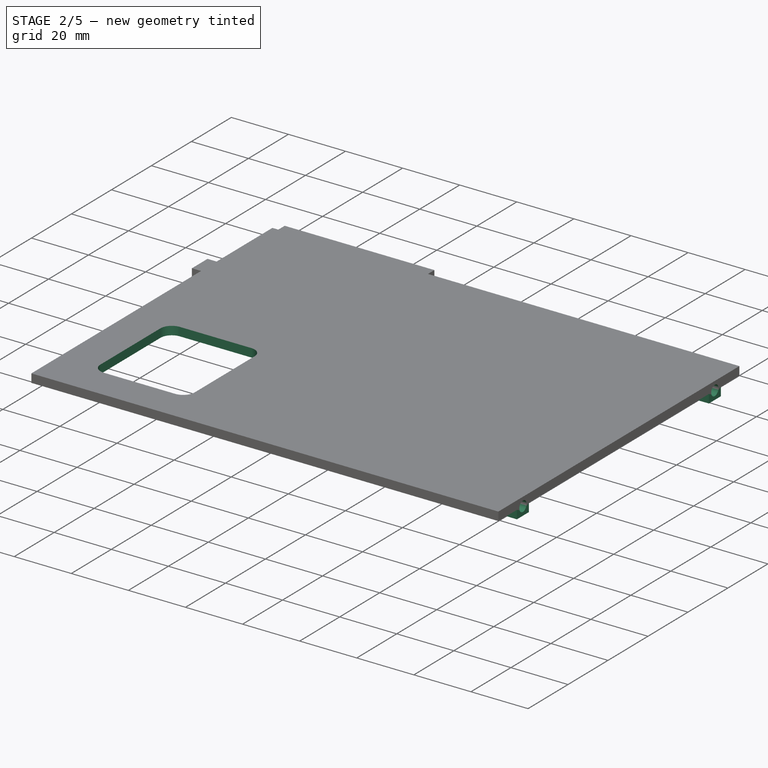
[diagram: stage 2 of 5 — iso view after this stage's code; geometry added in this stage tinted green]
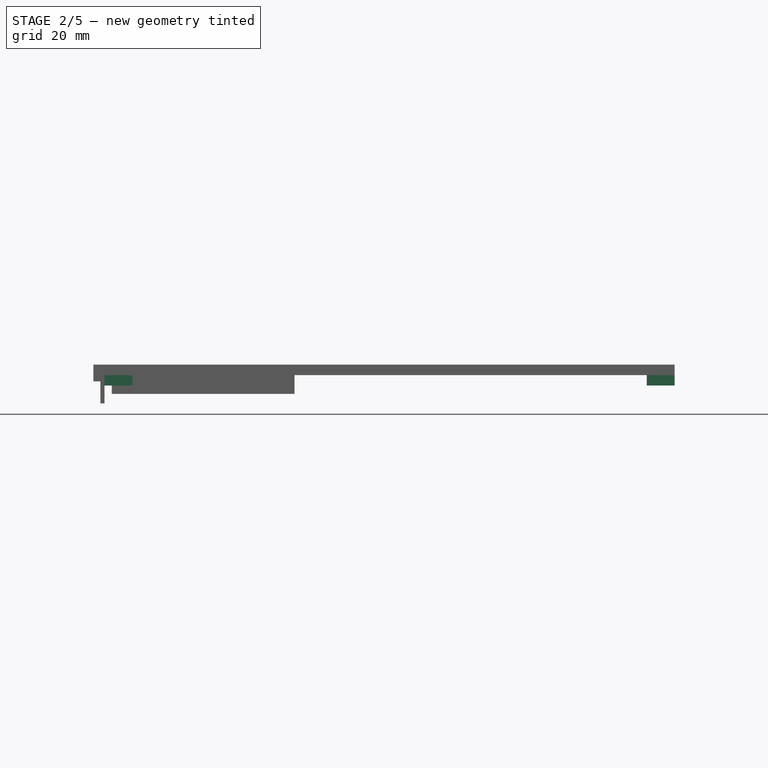
[diagram: stage 2 of 5 — front view after this stage's code; geometry added in this stage tinted green]
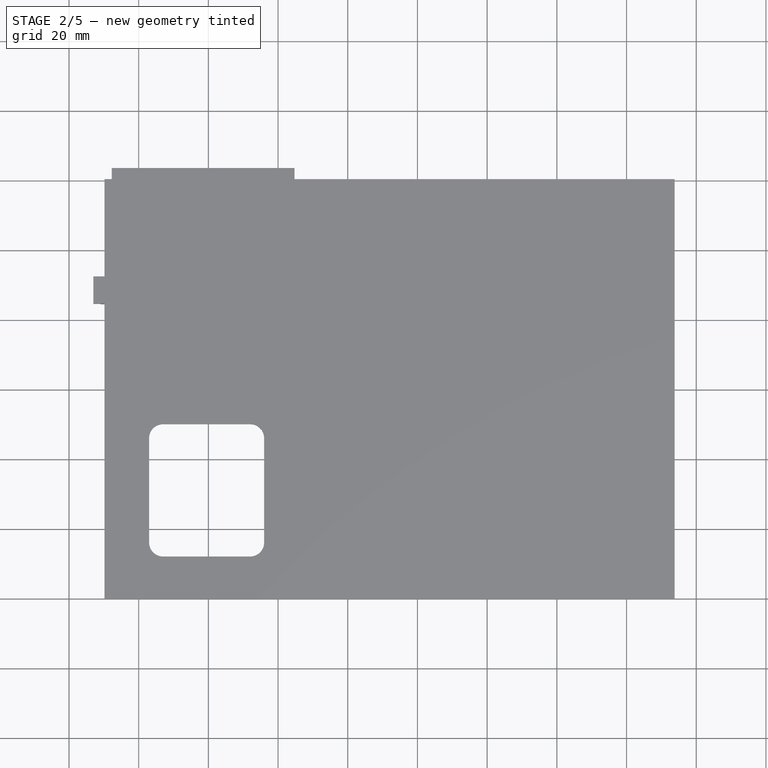
[diagram: stage 2 of 5 — top view after this stage's code; geometry added in this stage tinted green]
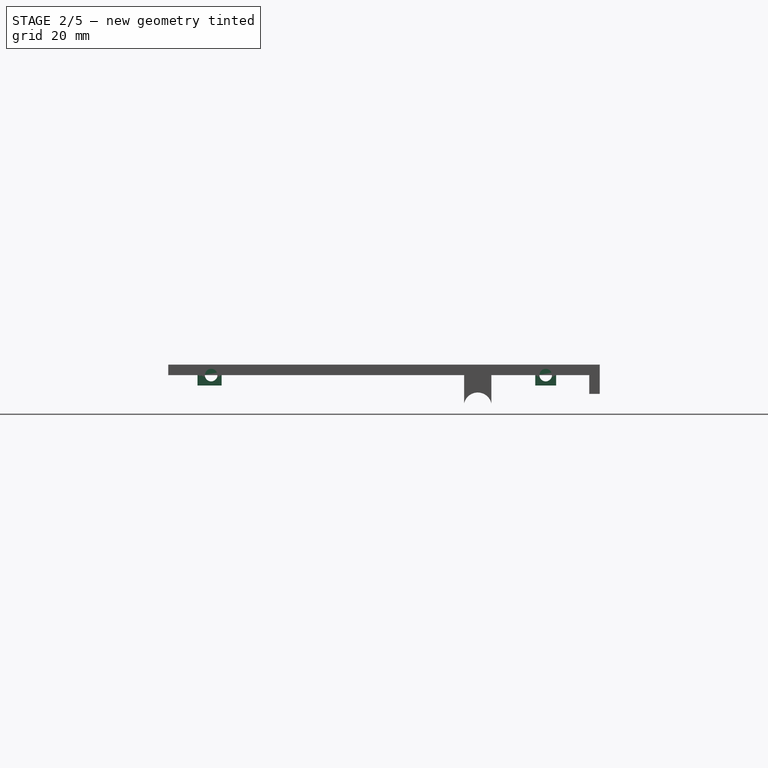
[diagram: stage 2 of 5 — right view after this stage's code; geometry added in this stage tinted green]
FEATURE [Sketcher::SketchObject] Sketch027  label="headphone wall hole"
  FullyConstrained = true
  MapMode = 5
  Placement = pos=(-91,0,0) rot=(0.57735,-0.57735,-0.57735;2.0944rad)
  Support = -> [Pocket019]
  sketch-geometry (1):
    g0: Circle CenterX=-28.5 CenterY=-9 CenterZ=0 NormalX=0 NormalY=0 NormalZ=1 AngleXU=0 Radius=4
  constraints (3):
    c: Diameter(g0) = 8
    c: DistanceY(g0,g-1) = 9
    c: DistanceX(g0,g-1) = 28.5
FEATURE [PartDesign::Pocket] Pocket020  label="headphone wall hole001"
  BaseFeature = -> Pocket019
  Direction = (1,0,0)
  Length = 5
  Length2 = 5
  Profile = -> Sketch027
  ReferenceAxis = -> Sketch027 [N_Axis]
  Refine = true
  Type = 0
FEATURE [Sketcher::SketchObject] Sketch028  label="screw posts"
  FullyConstrained = true
  MapMode = 5
  Placement = pos=(0,0,3) rot=(0,0,1;0rad)
  Support = -> [Pocket020]
  sketch-geometry (16):
    g0: LineSegment StartX=-89.8 StartY=51 StartZ=0 EndX=-89.8 EndY=45 EndZ=0
    g1: LineSegment StartX=-89.8 StartY=45 StartZ=0 EndX=-81.8 EndY=45 EndZ=0
    g2: LineSegment StartX=-81.8 StartY=45 StartZ=0 EndX=-81.8 EndY=51 EndZ=0
    g3: LineSegment StartX=-81.8 StartY=51 StartZ=0 EndX=-89.8 EndY=51 EndZ=0
    g4: LineSegment StartX=-89.8 StartY=-45 StartZ=0 EndX=-89.8 EndY=-51.904 EndZ=0
    g5: LineSegment StartX=-89.8 StartY=-51.904 StartZ=0 EndX=-81.8 EndY=-51.904 EndZ=0
    g6: LineSegment StartX=-81.8 StartY=-51.904 StartZ=0 EndX=-81.8 EndY=-45 EndZ=0
    g7: LineSegment StartX=-81.8 StartY=-45 StartZ=0 EndX=-89.8 EndY=-45 EndZ=0
    g8: LineSegment StartX=65.8 StartY=-45 StartZ=0 EndX=65.8 EndY=-51 EndZ=0
    g9: LineSegment StartX=65.8 StartY=-51 StartZ=0 EndX=73.8 EndY=-51 EndZ=0
    g10: LineSegment StartX=73.8 StartY=-51 StartZ=0 EndX=73.8 EndY=-45 EndZ=0
    g11: LineSegment StartX=73.8 StartY=-45 StartZ=0 EndX=65.8 EndY=-45 EndZ=0
    g12: LineSegment StartX=65.8 StartY=51 StartZ=0 EndX=65.8 EndY=45 EndZ=0
    g13: LineSegment StartX=65.8 StartY=45 StartZ=0 EndX=73.8 EndY=45 EndZ=0
    g14: LineSegment StartX=73.8 StartY=45 StartZ=0 EndX=73.8 EndY=51 EndZ=0
    g15: LineSegment StartX=73.8 StartY=51 StartZ=0 EndX=65.8 EndY=51 EndZ=0
  constraints (48):
    c: Coincident(g0,g1)
    c: Coincident(g1,g2)
    c: Coincident(g2,g3)
    c: Coincident(g3,g0)
    c: Vertical(g0)
    c: Vertical(g2)
    c: Horizontal(g1)
    c: Horizontal(g3)
    c: DistanceX(g3,g3) = 8
    c: DistanceY(g2,g2) = 6
    c: DistanceY(g-1,g1) = 45
    c: DistanceX(g1,g-1) = 81.8
    c: Coincident(g4,g5)
    c: Coincident(g5,g6)
    c: Coincident(g6,g7)
    c: Coincident(g7,g4)
    c: Vertical(g4)
    c: Vertical(g6)
    c: Horizontal(g5)
    c: Horizontal(g7)
    c: Coincident(g8,g9)
    c: Coincident(g9,g10)
    c: Coincident(g10,g11)
    c: Coincident(g11,g8)
    c: Vertical(g8)
    c: Vertical(g10)
    c: Horizontal(g9)
    c: Horizontal(g11)
    c: Coincident(g12,g13)
    c: Coincident(g13,g14)
    c: Coincident(g14,g15)
    c: Coincident(g15,g12)
    c: Vertical(g12)
    c: Vertical(g14)
    c: Horizontal(g13)
    c: Horizontal(g15)
    c: DistanceX(g7,g7) = 8
    c: DistanceX(g6,g-1) = 81.8
    c: DistanceX(g15,g15) = 8
    c: DistanceX(g-1,g12) = 65.8
    c: DistanceX(g11,g11) = 8
    c: DistanceX(g-1,g8) = 65.8
    c: DistanceY(g6,g6) = 6.904
    c: DistanceY(g6,g-1) = 45
    c: DistanceY(g8,g8) = 6
    c: DistanceY(g8,g-1) = 45
    c: DistanceY(g12,g12) = 6
    c: DistanceY(g-1,g12) = 45
FEATURE [PartDesign::Pad] Pad007  label="screw posts001"
  BaseFeature = -> Pocket020
  Direction = (0,0,1)
  Length = 6
  Length2 = 10
  Profile = -> Sketch028
  ReferenceAxis = -> Sketch028 [N_Axis]
  Refine = true
  Reversed = true
  Type = 0
FEATURE [Sketcher::SketchObject] Sketch029  label="screw holes left"
  FullyConstrained = true
  MapMode = 5
  Placement = pos=(73.8,0,0) rot=(0.57735,0.57735,0.57735;2.0944rad)
  Support = -> [Pad007]
  sketch-geometry (2):
    g0: Circle CenterX=48 CenterY=0 CenterZ=0 NormalX=0 NormalY=0 NormalZ=1 AngleXU=0 Radius=1.8
    g1: Circle CenterX=-48 CenterY=0 CenterZ=0 NormalX=0 NormalY=0 NormalZ=1 AngleXU=0 Radius=1.8
  constraints (6):
    c: Diameter(g1) = 3.6
    c: Diameter(g0) = 3.6
    c: DistanceX(g-1,g0) = 48
    c: DistanceX(g1,g-1) = 48
    c: DistanceY(g1,g-1) = 0
    c: DistanceY(g0,g-1) = 0
FEATURE [PartDesign::Pocket] Pocket021  label="screw holes left001"
  BaseFeature = -> Pad007
  Direction = (-1,0,0)
  Length = 8
  Length2 = 5
  Profile = -> Sketch029
  ReferenceAxis = -> Sketch029 [N_Axis]
  Refine = true
  Type = 0
FEATURE [Sketcher::SketchObject] Sketch030  label="screw holes right"
  FullyConstrained = true
  MapMode = 5
  Placement = pos=(-89.8,0,0) rot=(0.57735,-0.57735,-0.57735;2.0944rad)
  Support = -> [Pocket021]
  sketch-geometry (2):
    g0: Circle CenterX=48 CenterY=0 CenterZ=0 NormalX=0 NormalY=0 NormalZ=1 AngleXU=0 Radius=1.8
    g1: Circle CenterX=-48 CenterY=0 CenterZ=0 NormalX=0 NormalY=0 NormalZ=1 AngleXU=0 Radius=1.8
  constraints (6):
    c: PointOnObject(g0,g-1)
    c: PointOnObject(g1,g-1)
    c: Diameter(g1) = 3.6
    c: Diameter(g0) = 3.6
    c: DistanceX(g1,g-1) = 48
    c: DistanceX(g-1,g0) = 48
FEATURE [PartDesign::Pocket] Pocket022  label="screw hole right"
  BaseFeature = -> Pocket021
  Direction = (1,0,0)
  Length = 8
  Length2 = 5
  Profile = -> Sketch030
  ReferenceAxis = -> Sketch030 [N_Axis]
  Refine = true
  Type = 0
FEATURE [Sketcher::SketchObject] Sketch035  label="sd card opening"
  FullyConstrained = true
  MapMode = 5
  Placement = pos=(0,0,3) rot=(0,0,1;0rad)
  Support = -> [Pocket022]
  sketch-geometry (10):
    g0: LineSegment StartX=-77 StartY=-14 StartZ=0 EndX=-77 EndY=-44 EndZ=0
    g1: LineSegment StartX=-73 StartY=-48 StartZ=0 EndX=-48 EndY=-48 EndZ=0
    g2: LineSegment StartX=-44 StartY=-44 StartZ=0 EndX=-44 EndY=-14 EndZ=0
    g3: LineSegment StartX=-48 StartY=-10 StartZ=0 EndX=-73 EndY=-10 EndZ=0
    g4: ArcOfCircle CenterX=-73 CenterY=-14 CenterZ=0 NormalX=0 NormalY=0 NormalZ=1 AngleXU=0 Radius=4 StartAngle=1.5708 EndAngle=3.14159
    g5: ArcOfCircle CenterX=-73 CenterY=-44 CenterZ=0 NormalX=0 NormalY=0 NormalZ=1 AngleXU=0 Radius=4 StartAngle=3.14159 EndAngle=4.71239
    g6: ArcOfCircle CenterX=-48 CenterY=-44 CenterZ=0 NormalX=0 NormalY=0 NormalZ=1 AngleXU=0 Radius=4 StartAngle=4.71239 EndAngle=6.28319
    g7: ArcOfCircle CenterX=-48 CenterY=-14 CenterZ=0 NormalX=0 NormalY=0 NormalZ=1 AngleXU=0 Radius=4 StartAngle=1e-16 EndAngle=1.5708
    g8: GeomPoint X=-77 Y=-10 Z=0
    g9: GeomPoint X=-44 Y=-48 Z=0
  constraints (24):
    c: Tangent(g0,g4) = -1.5708
    c: Tangent(g0,g5) = -1.5708
    c: Tangent(g1,g5) = -1.5708
    c: Tangent(g1,g6) = -1.5708
    c: Tangent(g2,g6) = -1.5708
    c: Tangent(g2,g7) = -1.5708
    c: Tangent(g3,g7) = -1.5708
    c: Tangent(g3,g4) = -1.5708
    c: Vertical(g0)
    c: Vertical(g2)
    c: Horizontal(g1)
    c: Horizontal(g3)
    c: Equal(g4,g5)
    c: Equal(g5,g6)
    c: Equal(g6,g7)
    c: PointOnObject(g8,g0)
    c: PointOnObject(g8,g3)
    c: PointOnObject(g9,g1)
    c: PointOnObject(g9,g2)
    c: DistanceX(g3,g3) = 25
    c: Diameter(g7) = 8
    c: DistanceY(g2,g2) = 30
    c: DistanceY(g-1,g3) = -10
    c: DistanceX(g2,g-1) = 44
FEATURE [PartDesign::Pocket] Pocket027  label="sd card opening001"
  BaseFeature = -> Pocket022
  Direction = (0,0,-1)
  Length = 5
  Length2 = 5
  Profile = -> Sketch035
  ReferenceAxis = -> Sketch035 [N_Axis]
  Refine = true
  Type = 0
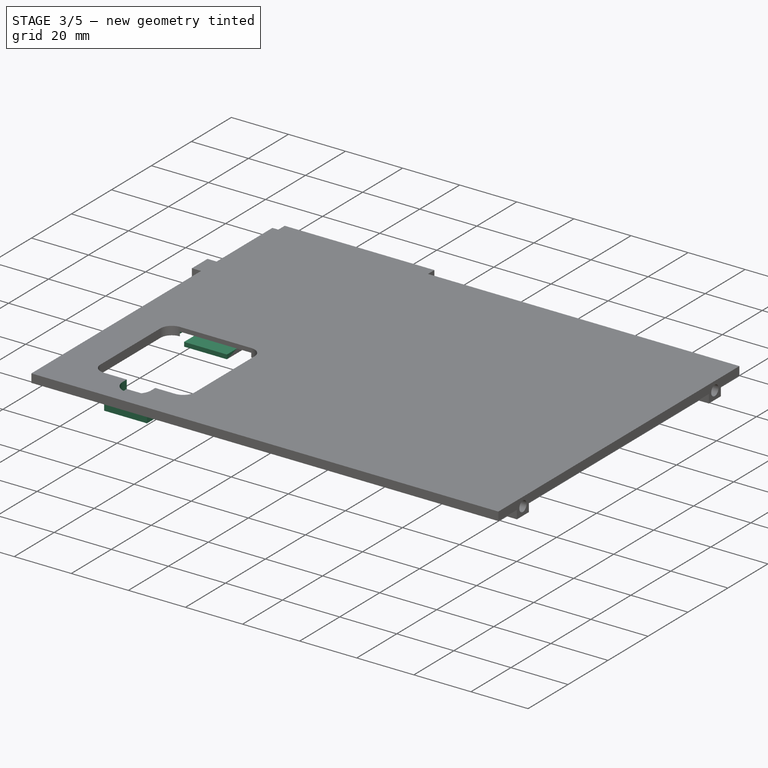
[diagram: stage 3 of 5 — iso view after this stage's code; geometry added in this stage tinted green]
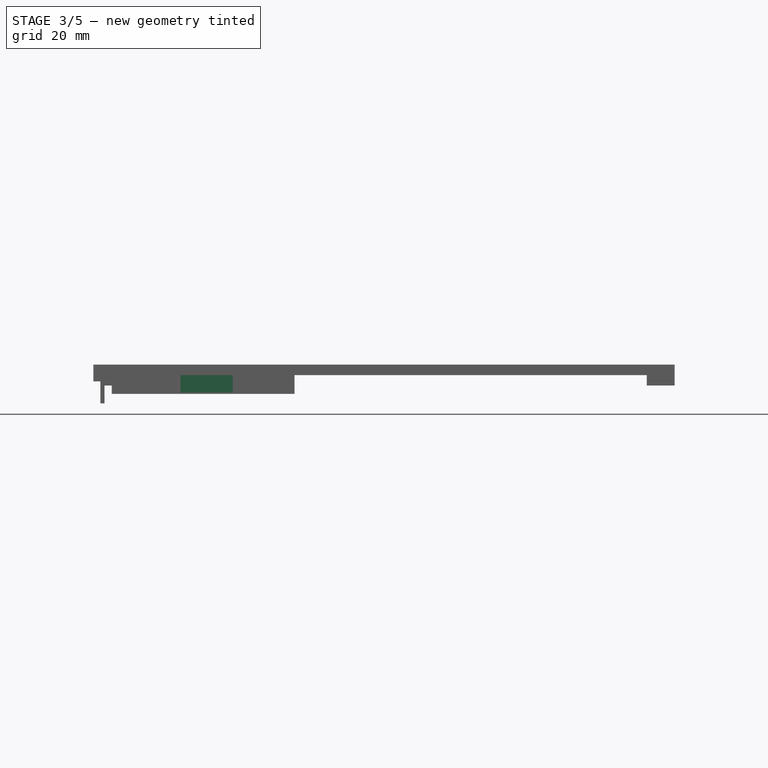
[diagram: stage 3 of 5 — front view after this stage's code; geometry added in this stage tinted green]
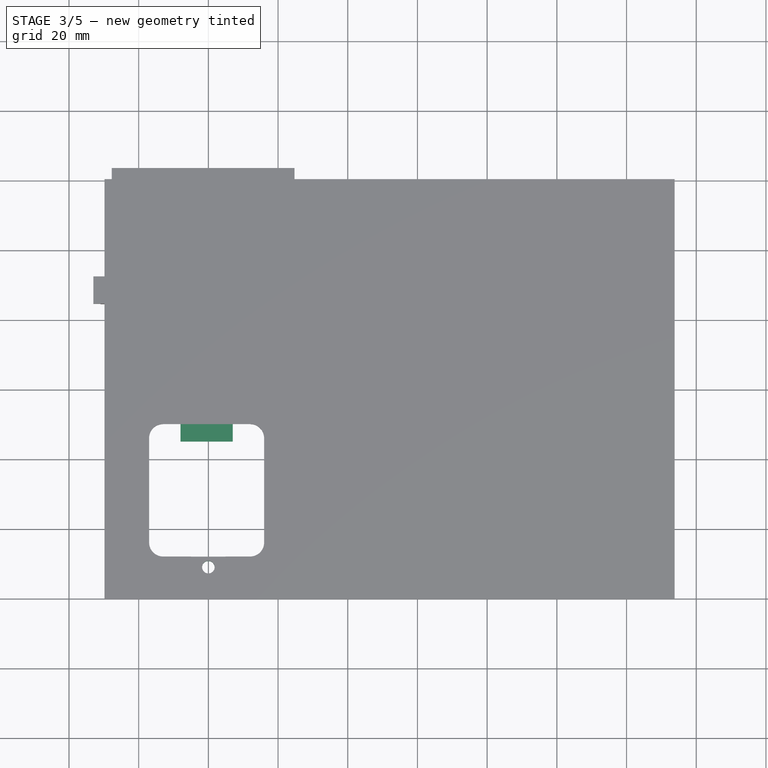
[diagram: stage 3 of 5 — top view after this stage's code; geometry added in this stage tinted green]
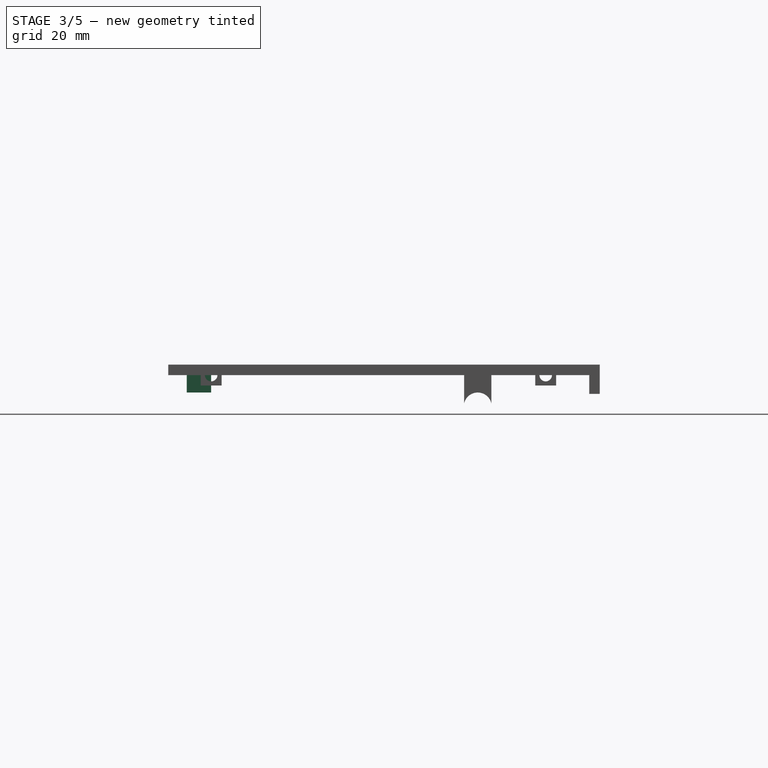
[diagram: stage 3 of 5 — right view after this stage's code; geometry added in this stage tinted green]
FEATURE [Sketcher::SketchObject] Sketch036  label="sd card insert002"
  FullyConstrained = true
  MapMode = 5
  Placement = pos=(0,-10,0) rot=(1,0,0;1.5708rad)
  Support = -> [Pocket027]
  sketch-geometry (4):
    g0: LineSegment StartX=-68 StartY=0 StartZ=0 EndX=-53 EndY=0 EndZ=0
    g1: LineSegment StartX=-53 StartY=0 StartZ=0 EndX=-53 EndY=1.5 EndZ=0
    g2: LineSegment StartX=-53 StartY=1.5 StartZ=0 EndX=-68 EndY=1.5 EndZ=0
    g3: LineSegment StartX=-68 StartY=1.5 StartZ=0 EndX=-68 EndY=0 EndZ=0
  constraints (12):
    c: Coincident(g0,g1)
    c: Coincident(g1,g2)
    c: Coincident(g2,g3)
    c: Coincident(g3,g0)
    c: Horizontal(g0)
    c: Horizontal(g2)
    c: Vertical(g1)
    c: Vertical(g3)
    c: PointOnObject(g0,g-1)
    c: DistanceY(g1,g1) = 1.5
    c: DistanceX(g2,g2) = 15
    c: DistanceX(g0,g-1) = 53
FEATURE [PartDesign::Pad] Pad008  label="sd card insert003"
  BaseFeature = -> Pocket027
  Direction = (0,-1,2e-16)
  Length = 5
  Length2 = 10
  Profile = -> Sketch036
  ReferenceAxis = -> Sketch036 [N_Axis]
  Refine = true
  Type = 0
FEATURE [Sketcher::SketchObject] Sketch037  label="sd card insert"
  FullyConstrained = true
  MapMode = 5
  Placement = pos=(0,0,0) rot=(1,0,0;3.14159rad)
  Support = -> [Pad008]
  sketch-geometry (8):
    g0: LineSegment StartX=-74 StartY=10 StartZ=0 EndX=-74 EndY=5 EndZ=0
    g1: LineSegment StartX=-74 StartY=5 StartZ=0 EndX=-68 EndY=5 EndZ=0
    g2: LineSegment StartX=-68 StartY=5 StartZ=0 EndX=-68 EndY=10 EndZ=0
    g3: LineSegment StartX=-68 StartY=10 StartZ=0 EndX=-74 EndY=10 EndZ=0
    g4: LineSegment StartX=-53 StartY=10 StartZ=0 EndX=-53 EndY=5 EndZ=0
    g5: LineSegment StartX=-53 StartY=5 StartZ=0 EndX=-47 EndY=5 EndZ=0
    g6: LineSegment StartX=-47 StartY=5 StartZ=0 EndX=-47 EndY=10 EndZ=0
    g7: LineSegment StartX=-47 StartY=10 StartZ=0 EndX=-53 EndY=10 EndZ=0
  constraints (24):
    c: Coincident(g0,g1)
    c: Coincident(g1,g2)
    c: Coincident(g2,g3)
    c: Coincident(g3,g0)
    c: Vertical(g0)
    c: Vertical(g2)
    c: Horizontal(g1)
    c: Horizontal(g3)
    c: Coincident(g4,g5)
    c: Coincident(g5,g6)
    c: Coincident(g6,g7)
    c: Coincident(g7,g4)
    c: Vertical(g4)
    c: Vertical(g6)
    c: Horizontal(g5)
    c: Horizontal(g7)
    c: DistanceX(g3,g3) = 6
    c: DistanceX(g7,g7) = 6
    c: DistanceY(g6,g6) = 5
    c: DistanceY(g2,g2) = 5
    c: DistanceX(g6,g-1) = 47
    c: DistanceX(g2,g-1) = 68
    c: DistanceY(g-1,g5) = 5
    c: DistanceY(g-1,g1) = 5
FEATURE [PartDesign::Pocket] Pocket028  label="sd card insert001"
  BaseFeature = -> Pad008
  Direction = (0,0,1)
  Length = 1.5
  Length2 = 5
  Profile = -> Sketch037
  ReferenceAxis = -> Sketch037 [N_Axis]
  Refine = true
  Type = 0
FEATURE [Sketcher::SketchObject] Sketch038  label="sd card screw post"
  FullyConstrained = true
  MapMode = 5
  Placement = pos=(0,0,0) rot=(1,0,0;3.14159rad)
  Support = -> [Pocket028]
  sketch-geometry (4):
    g0: LineSegment StartX=-68 StartY=48 StartZ=0 EndX=-53 EndY=48 EndZ=0
    g1: LineSegment StartX=-53 StartY=48 StartZ=0 EndX=-53 EndY=55 EndZ=0
    g2: LineSegment StartX=-53 StartY=55 StartZ=0 EndX=-68 EndY=55 EndZ=0
    g3: LineSegment StartX=-68 StartY=55 StartZ=0 EndX=-68 EndY=48 EndZ=0
  constraints (12):
    c: Coincident(g0,g1)
    c: Coincident(g1,g2)
    c: Coincident(g2,g3)
    c: Coincident(g3,g0)
    c: Horizontal(g0)
    c: Horizontal(g2)
    c: Vertical(g1)
    c: Vertical(g3)
    c: DistanceX(g2,g2) = 15
    c: DistanceY(g1,g1) = 7
    c: DistanceX(g0,g-1) = 53
    c: DistanceY(g-1,g0) = 48
FEATURE [PartDesign::Pad] Pad009  label="sd card screw post001"
  BaseFeature = -> Pocket028
  Direction = (0,0,-1)
  Length = 5
  Length2 = 10
  Profile = -> Sketch038
  ReferenceAxis = -> Sketch038 [N_Axis]
  Refine = true
  Type = 0
FEATURE [Sketcher::SketchObject] Sketch039  label="sd card screw insert"
  FullyConstrained = true
  MapMode = 5
  Placement = pos=(0,0,3) rot=(0,0,1;0rad)
  Support = -> [Pad009]
  sketch-geometry (4):
    g0: ArcOfCircle CenterX=-60 CenterY=-50 CenterZ=0 NormalX=0 NormalY=0 NormalZ=1 AngleXU=0 Radius=5 StartAngle=3.14159 EndAngle=6.28319
    g1: LineSegment StartX=-65 StartY=-50 StartZ=0 EndX=-65 EndY=-48 EndZ=0
    g2: LineSegment StartX=-65 StartY=-48 StartZ=0 EndX=-55 EndY=-48 EndZ=0
    g3: LineSegment StartX=-55 StartY=-48 StartZ=0 EndX=-55 EndY=-50 EndZ=0
  constraints (12):
    c: Diameter(g0) = 10
    c: DistanceY(g0,g-1) = 50
    c: DistanceX(g0,g-1) = 60
    c: DistanceY(g0,g-1) = 50
    c: DistanceY(g0,g-1) = 50
    c: Coincident(g1,g0)
    c: Vertical(g1)
    c: Coincident(g2,g1)
    c: Horizontal(g2)
    c: Coincident(g3,g2)
    c: Tangent(g3,g0) = 1.5708
    c: DistanceY(g3,g3) = 2
FEATURE [PartDesign::Pocket] Pocket029  label="sd card screw insert001"
  BaseFeature = -> Pad009
  Direction = (0,0,-1)
  Length = 3
  Length2 = 5
  Profile = -> Sketch039
  ReferenceAxis = -> Sketch039 [N_Axis]
  Refine = true
  Type = 0
FEATURE [Sketcher::SketchObject] Sketch040  label="sd card screw hole"
  FullyConstrained = true
  MapMode = 5
  Placement = pos=(0,0,-4e-16) rot=(0,0,1;0rad)
  Support = -> [Pocket029]
  sketch-geometry (1):
    g0: Circle CenterX=-60 CenterY=-51 CenterZ=0 NormalX=0 NormalY=0 NormalZ=1 AngleXU=0 Radius=1.8
  constraints (3):
    c: Diameter(g0) = 3.6
    c: DistanceY(g0,g-1) = 51
    c: DistanceX(g0,g-1) = 60
FEATURE [PartDesign::Pocket] Pocket030  label="sd card screw hole001"
  BaseFeature = -> Pocket029
  Direction = (0,0,-1)
  Length = 5
  Length2 = 5
  Profile = -> Sketch040
  ReferenceAxis = -> Sketch040 [N_Axis]
  Refine = true
  Type = 0
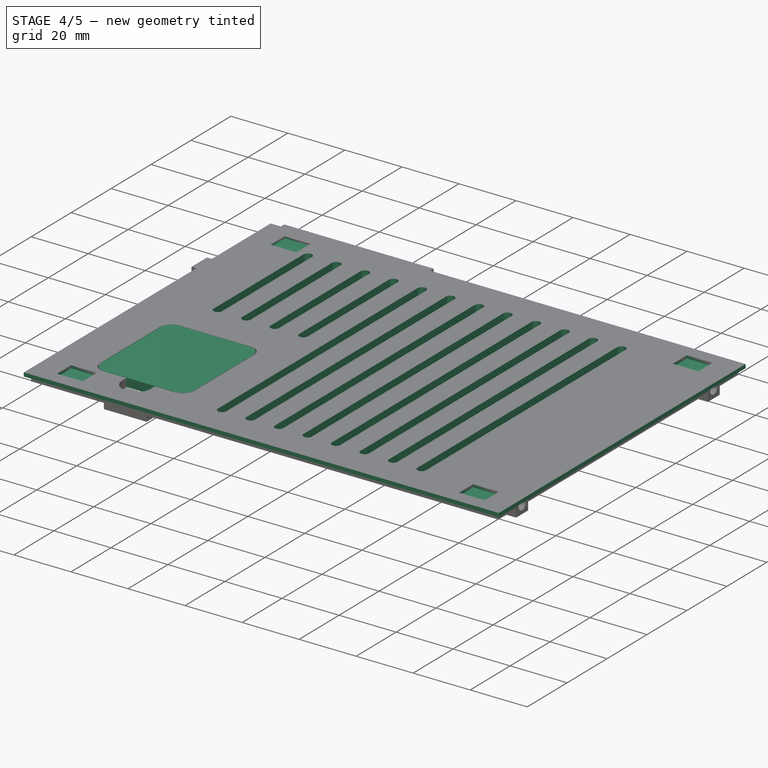
[diagram: stage 4 of 5 — iso view after this stage's code; geometry added in this stage tinted green]
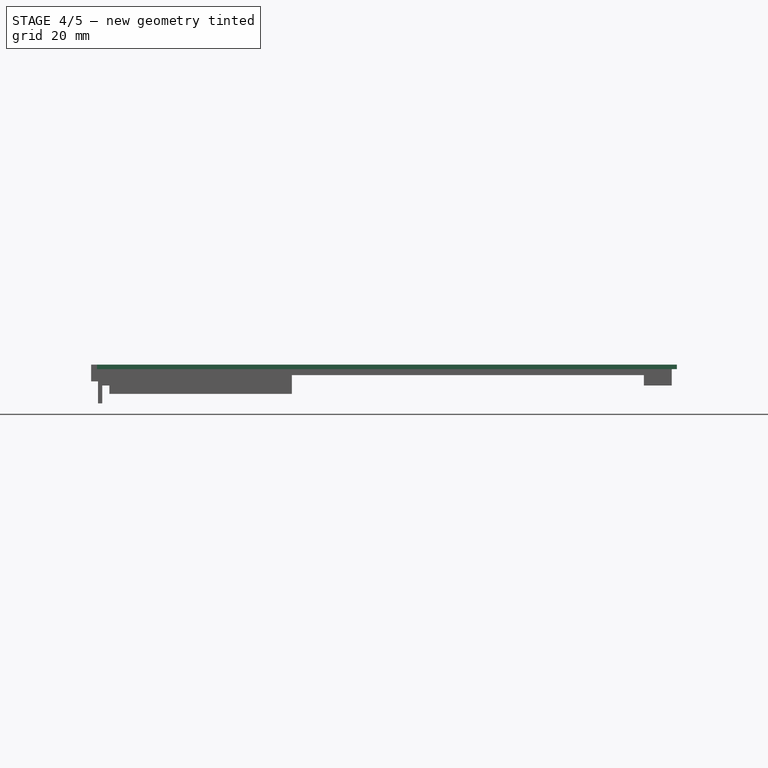
[diagram: stage 4 of 5 — front view after this stage's code; geometry added in this stage tinted green]
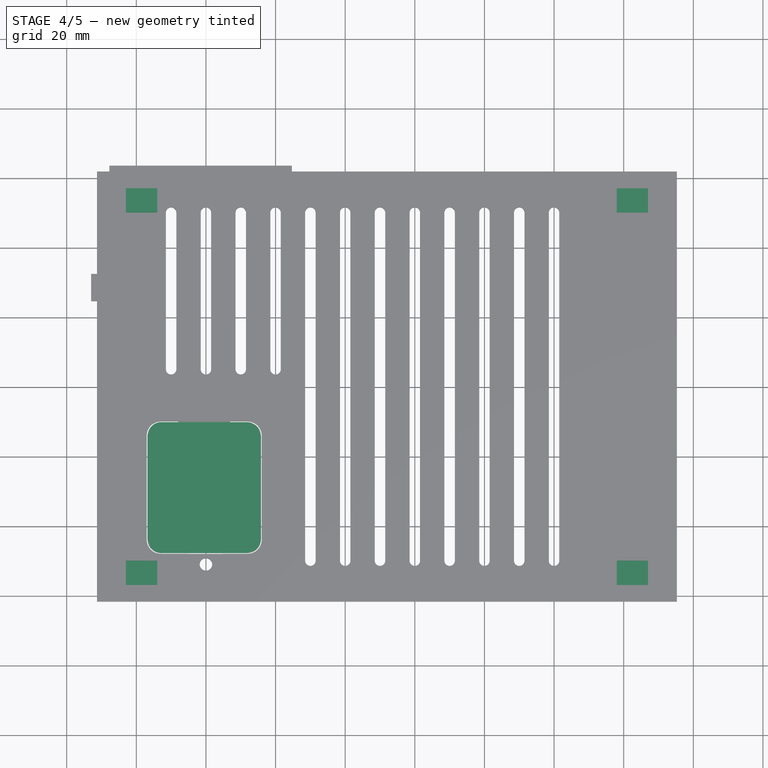
[diagram: stage 4 of 5 — top view after this stage's code; geometry added in this stage tinted green]
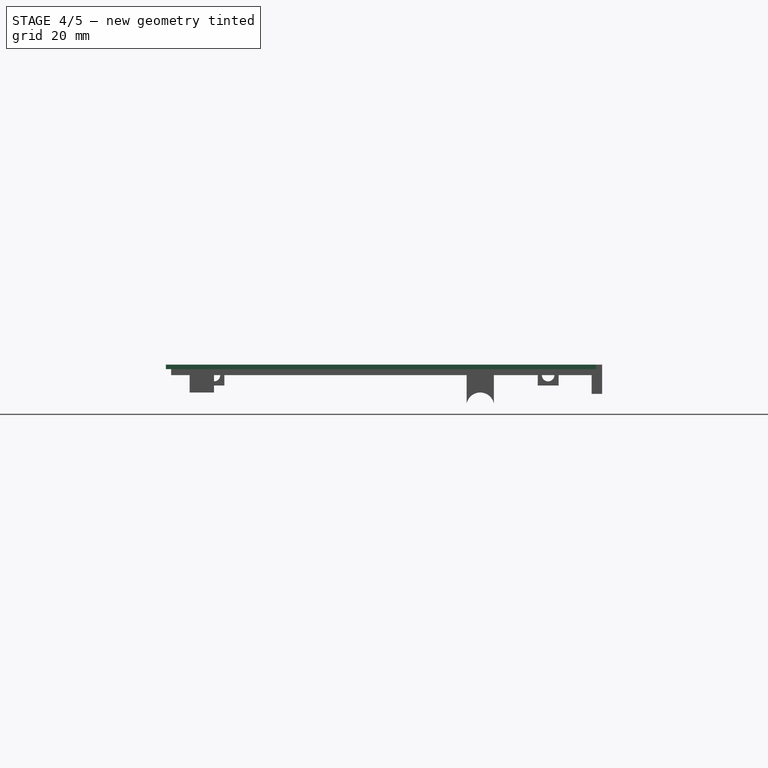
[diagram: stage 4 of 5 — right view after this stage's code; geometry added in this stage tinted green]
FEATURE [Sketcher::SketchObject] Sketch041  label="bottom openings"
  FullyConstrained = true
  MapMode = 5
  Placement = pos=(0,0,0) rot=(1,0,0;3.14159rad)
  Support = -> [Pocket030]
  sketch-geometry (48):
    g0: ArcOfCircle CenterX=-30 CenterY=50 CenterZ=0 NormalX=0 NormalY=0 NormalZ=1 AngleXU=0 Radius=1.5 StartAngle=0 EndAngle=3.14159
    g1: ArcOfCircle CenterX=-20 CenterY=50 CenterZ=0 NormalX=0 NormalY=0 NormalZ=1 AngleXU=0 Radius=1.5 StartAngle=0 EndAngle=3.14159
    g2: ArcOfCircle CenterX=-10 CenterY=50 CenterZ=0 NormalX=0 NormalY=0 NormalZ=1 AngleXU=0 Radius=1.5 StartAngle=0 EndAngle=3.14159
    g3: ArcOfCircle CenterX=0 CenterY=50 CenterZ=0 NormalX=0 NormalY=0 NormalZ=1 AngleXU=0 Radius=1.5 StartAngle=0 EndAngle=3.14159
    g4: ArcOfCircle CenterX=10 CenterY=50 CenterZ=0 NormalX=0 NormalY=0 NormalZ=1 AngleXU=0 Radius=1.5 StartAngle=0 EndAngle=3.14159
    g5: ArcOfCircle CenterX=20 CenterY=50 CenterZ=0 NormalX=0 NormalY=0 NormalZ=1 AngleXU=0 Radius=1.5 StartAngle=0 EndAngle=3.14159
    g6: ArcOfCircle CenterX=30 CenterY=50 CenterZ=0 NormalX=0 NormalY=0 NormalZ=1 AngleXU=0 Radius=1.5 StartAngle=0 EndAngle=3.14159
    g7: ArcOfCircle CenterX=40 CenterY=50 CenterZ=0 NormalX=0 NormalY=0 NormalZ=1 AngleXU=0 Radius=1.5 StartAngle=0 EndAngle=3.14159
    g8: ArcOfCircle CenterX=-30 CenterY=-50 CenterZ=0 NormalX=0 NormalY=0 NormalZ=1 AngleXU=0 Radius=1.5 StartAngle=3.14159 EndAngle=6.28319
    g9: ArcOfCircle CenterX=-20 CenterY=-50 CenterZ=0 NormalX=0 NormalY=0 NormalZ=1 AngleXU=0 Radius=1.5 StartAngle=3.14159 EndAngle=6.28319
    g10: ArcOfCircle CenterX=-10 CenterY=-50 CenterZ=0 NormalX=0 NormalY=0 NormalZ=1 AngleXU=0 Radius=1.5 StartAngle=3.14159 EndAngle=6.28319
    g11: ArcOfCircle CenterX=0 CenterY=-50 CenterZ=0 NormalX=0 NormalY=0 NormalZ=1 AngleXU=0 Radius=1.5 StartAngle=3.14159 EndAngle=6.28319
    g12: ArcOfCircle CenterX=10 CenterY=-50 CenterZ=0 NormalX=0 NormalY=0 NormalZ=1 AngleXU=0 Radius=1.5 StartAngle=3.14159 EndAngle=6.28319
    g13: ArcOfCircle CenterX=20 CenterY=-50 CenterZ=0 NormalX=0 NormalY=0 NormalZ=1 AngleXU=0 Radius=1.5 StartAngle=3.14159 EndAngle=6.28319
    g14: ArcOfCircle CenterX=40 CenterY=-50 CenterZ=0 NormalX=0 NormalY=0 NormalZ=1 AngleXU=0 Radius=1.5 StartAngle=3.14159 EndAngle=6.28319
    g15: ArcOfCircle CenterX=30 CenterY=-50 CenterZ=0 NormalX=0 NormalY=0 NormalZ=1 AngleXU=0 Radius=1.5 StartAngle=3.14159 EndAngle=6.28319
    g16: LineSegment StartX=-31.5 StartY=50 StartZ=0 EndX=-31.5 EndY=-50 EndZ=0
    g17: LineSegment StartX=-28.5 StartY=-50 StartZ=0 EndX=-28.5 EndY=50 EndZ=0
    g18: LineSegment StartX=-21.5 StartY=50 StartZ=0 EndX=-21.5 EndY=-50 EndZ=0
    g19: LineSegment StartX=-18.5 StartY=-50 StartZ=0 EndX=-18.5 EndY=50 EndZ=0
    g20: LineSegment StartX=-11.5 StartY=50 StartZ=0 EndX=-11.5 EndY=-50 EndZ=0
    g21: LineSegment StartX=-8.5 StartY=-50 StartZ=0 EndX=-8.5 EndY=50 EndZ=0
    g22: LineSegment StartX=-1.5 StartY=50 StartZ=0 EndX=-1.5 EndY=-50 EndZ=0
    g23: LineSegment StartX=1.5 StartY=-50 StartZ=0 EndX=1.5 EndY=50 EndZ=0
    g24: LineSegment StartX=8.5 StartY=50 StartZ=0 EndX=8.5 EndY=-50 EndZ=0
    g25: LineSegment StartX=11.5 StartY=-50 StartZ=0 EndX=11.5 EndY=50 EndZ=0
    g26: LineSegment StartX=18.5 StartY=50 StartZ=0 EndX=18.5 EndY=-50 EndZ=0
    g27: LineSegment StartX=21.5 StartY=-50 StartZ=0 EndX=21.5 EndY=50 EndZ=0
    g28: LineSegment StartX=28.5 StartY=50 StartZ=0 EndX=28.5 EndY=-50 EndZ=0
    g29: LineSegment StartX=31.5 StartY=50 StartZ=0 EndX=31.5 EndY=-50 EndZ=0
    g30: LineSegment StartX=38.5 StartY=50 StartZ=0 EndX=38.5 EndY=-50 EndZ=0
    g31: LineSegment StartX=41.5 StartY=-50 StartZ=0 EndX=41.5 EndY=50 EndZ=0
    g32: ArcOfCircle CenterX=-40 CenterY=-50 CenterZ=0 NormalX=0 NormalY=0 NormalZ=1 AngleXU=0 Radius=1.5 StartAngle=3.14159 EndAngle=6.28319
    g33: ArcOfCircle CenterX=-50 CenterY=-50 CenterZ=0 NormalX=0 NormalY=0 NormalZ=1 AngleXU=0 Radius=1.5 StartAngle=3.14159 EndAngle=6.28319
    g34: ArcOfCircle CenterX=-60 CenterY=-50 CenterZ=0 NormalX=0 NormalY=0 NormalZ=1 AngleXU=0 Radius=1.5 StartAngle=3.14159 EndAngle=6.28319
    g35: ArcOfCircle CenterX=-70 CenterY=-50 CenterZ=0 NormalX=0 NormalY=0 NormalZ=1 AngleXU=0 Radius=1.5 StartAngle=3.14159 EndAngle=6.28319
    g36: ArcOfCircle CenterX=-40 CenterY=-5 CenterZ=0 NormalX=0 NormalY=0 NormalZ=1 AngleXU=0 Radius=1.5 StartAngle=0 EndAngle=3.14159
    g37: ArcOfCircle CenterX=-50 CenterY=-5 CenterZ=0 NormalX=0 NormalY=0 NormalZ=1 AngleXU=0 Radius=1.5 StartAngle=0 EndAngle=3.14159
    g38: ArcOfCircle CenterX=-60 CenterY=-5 CenterZ=0 NormalX=0 NormalY=0 NormalZ=1 AngleXU=0 Radius=1.5 StartAngle=0 EndAngle=3.14159
    g39: ArcOfCircle CenterX=-70 CenterY=-5 CenterZ=0 NormalX=0 NormalY=0 NormalZ=1 AngleXU=0 Radius=1.5 StartAngle=0 EndAngle=3.14159
    g40: LineSegment StartX=-71.5 StartY=-5 StartZ=0 EndX=-71.5 EndY=-50 EndZ=0
    g41: LineSegment StartX=-68.5 StartY=-5 StartZ=0 EndX=-68.5 EndY=-50 EndZ=0
    g42: LineSegment StartX=-61.5 StartY=-5 StartZ=0 EndX=-61.5 EndY=-50 EndZ=0
    g43: LineSegment StartX=-58.5 StartY=-5 StartZ=0 EndX=-58.5 EndY=-50 EndZ=0
    g44: LineSegment StartX=-51.5 StartY=-5 StartZ=0 EndX=-51.5 EndY=-50 EndZ=0
    g45: LineSegment StartX=-48.5 StartY=-5 StartZ=0 EndX=-48.5 EndY=-50 EndZ=0
    g46: LineSegment StartX=-41.5 StartY=-5 StartZ=0 EndX=-41.5 EndY=-50 EndZ=0
    g47: LineSegment StartX=-38.5 StartY=-5 StartZ=0 EndX=-38.5 EndY=-50 EndZ=0
  constraints (148):
    c: Horizontal(g0,g0)
    c: Horizontal(g0,g0)
    c: Diameter(g0) = 3
    c: Horizontal(g1,g1)
    c: Horizontal(g1,g1)
    c: Diameter(g1) = 3
    c: Horizontal(g2,g2)
    c: Horizontal(g2,g2)
    c: Diameter(g2) = 3
    c: Horizontal(g3,g3)
    c: Horizontal(g3,g3)
    c: Diameter(g3) = 3
    c: Horizontal(g4,g4)
    c: Horizontal(g4,g4)
    c: Diameter(g4) = 3
    c: Horizontal(g5,g5)
    c: Horizontal(g5,g5)
    c: Diameter(g5) = 3
    c: Horizontal(g6,g6)
    c: Horizontal(g6,g6)
    c: Diameter(g6) = 3
    c: Horizontal(g7,g7)
    c: Horizontal(g7,g7)
    c: Diameter(g7) = 3
    c: DistanceY(g-1,g0) = 50
    c: DistanceX(g0,g-1) = 30
    c: DistanceY(g-1,g1) = 50
    c: DistanceX(g1,g-1) = 20
    c: DistanceX(g2,g-1) = 10
    c: DistanceY(g-1,g2) = 50
    c: DistanceY(g-1,g3) = 50
    c: DistanceX(g3,g-1) = 0
    c: DistanceX(g4,g-1) = -10
    c: DistanceX(g5,g-1) = -20
    c: DistanceX(g6,g-1) = -30
    c: DistanceY(g-1,g4) = 50
    c: DistanceY(g-1,g5) = 50
    c: DistanceY(g-1,g6) = 50
    c: DistanceY(g-1,g7) = 50
    c: DistanceX(g7,g-1) = -40
    c: Horizontal(g8,g8)
    c: Horizontal(g8,g8)
    c: Horizontal(g9,g9)
    c: Horizontal(g9,g9)
    c: Horizontal(g10,g10)
    c: Horizontal(g10,g10)
    c: Horizontal(g11,g11)
    c: Horizontal(g11,g11)
    c: Horizontal(g12,g12)
    c: Horizontal(g12,g12)
    c: Diameter(g13) = 3
    c: Horizontal(g13,g13)
    c: Horizontal(g14,g14)
    c: Horizontal(g14,g14)
    c: Horizontal(g15,g15)
    c: Horizontal(g15,g15)
    c: DistanceY(g8,g-1) = 50
    c: DistanceY(g9,g-1) = 50
    c: DistanceY(g10,g-1) = 50
    c: DistanceY(g11,g-1) = 50
    c: DistanceY(g12,g-1) = 50
    c: DistanceY(g13,g-1) = 50
    c: DistanceY(g15,g-1) = 50
    c: DistanceY(g14,g-1) = 50
    c: Tangent(g16,g0) = -1.5708
    c: Coincident(g16,g8)
    c: Coincident(g17,g8)
    c: Tangent(g17,g0) = -1.5708
    c: Tangent(g18,g1) = -1.5708
    c: Coincident(g18,g9)
    c: Coincident(g19,g9)
    c: Tangent(g19,g1) = -1.5708
    c: Tangent(g20,g2) = -1.5708
    c: Coincident(g20,g10)
    c: Coincident(g21,g10)
    c: Tangent(g21,g2) = -1.5708
    c: Tangent(g22,g3) = -1.5708
    c: Coincident(g22,g11)
    c: Coincident(g23,g11)
    c: Tangent(g23,g3) = -1.5708
    c: Tangent(g24,g4) = -1.5708
    c: Coincident(g24,g12)
    c: Coincident(g25,g12)
    c: Tangent(g25,g4) = -1.5708
    c: Coincident(g26,g5)
    c: Tangent(g26,g13) = -1.5708
    c: Coincident(g27,g13)
    c: Tangent(g27,g5) = -1.5708
    c: Tangent(g28,g6) = -1.5708
    c: Coincident(g28,g15)
    c: Tangent(g29,g6) = 1.5708
    c: Coincident(g29,g15)
    c: Tangent(g30,g7) = -1.5708
    c: Coincident(g30,g14)
    c: Coincident(g31,g14)
    c: Tangent(g31,g7) = -1.5708
    c: Horizontal(g32,g32)
    c: Horizontal(g32,g32)
    c: Horizontal(g33,g33)
    c: Horizontal(g33,g33)
    c: DistanceX(g32,g-1) = 40
    c: DistanceY(g32,g-1) = 50
    c: DistanceX(g33,g-1) = 50
    c: DistanceY(g33,g-1) = 50
    c: Diameter(g33) = 3
    c: Diameter(g32) = 3
    c: Diameter(g34) = 3
    c: Diameter(g35) = 3
    c: Horizontal(g34,g34)
    c: Horizontal(g34,g34)
    c: Horizontal(g35,g35)
    c: DistanceX(g34,g-1) = 60
    c: DistanceX(g35,g-1) = 70
    c: DistanceY(g34,g-1) = 50
    c: Horizontal(g35,g35)
    c: DistanceY(g35,g-1) = 50
    c: Horizontal(g36,g36)
    c: Horizontal(g36,g36)
    c: Diameter(g36) = 3
    c: DistanceX(g36,g-1) = 40
    c: DistanceY(g36,g-1) = 5
    c: Horizontal(g37,g37)
    c: Horizontal(g37,g37)
    c: Diameter(g37) = 3
    c: Horizontal(g38,g38)
    c: Horizontal(g38,g38)
    c: DistanceX(g37,g-1) = 50
    c: Horizontal(g39,g39)
    c: Horizontal(g39,g39)
    c: DistanceY(g37,g-1) = 5
    c: DistanceY(g38,g-1) = 5
    c: DistanceY(g39,g-1) = 5
    c: Tangent(g40,g39) = -1.5708
    c: Coincident(g40,g35)
    c: Coincident(g41,g39)
    c: Tangent(g41,g35) = 1.5708
    c: Coincident(g42,g38)
    c: Tangent(g42,g34) = -1.5708
    c: Coincident(g43,g38)
    c: Tangent(g43,g34) = 1.5708
    c: Coincident(g44,g37)
    c: Coincident(g44,g33)
    c: Coincident(g45,g37)
    c: Coincident(g45,g33)
    c: Coincident(g46,g36)
    c: Coincident(g46,g32)
    c: Coincident(g47,g36)
    c: Coincident(g47,g32)
FEATURE [PartDesign::Pocket] Pocket031  label="botom openings"
  BaseFeature = -> Pocket030
  Direction = (0,0,1)
  Length = 5
  Length2 = 5
  Profile = -> Sketch041
  ReferenceAxis = -> Sketch041 [N_Axis]
  Refine = true
  Type = 0
FEATURE [Sketcher::SketchObject] Sketch042  label="bottom leg inserts"
  FullyConstrained = true
  MapMode = 5
  Placement = pos=(0,0,3) rot=(0,0,1;0rad)
  Support = -> [Pocket031]
  sketch-geometry (16):
    g0: LineSegment StartX=-83 StartY=57 StartZ=0 EndX=-83 EndY=50 EndZ=0
    g1: LineSegment StartX=-83 StartY=50 StartZ=0 EndX=-74 EndY=50 EndZ=0
    g2: LineSegment StartX=-74 StartY=50 StartZ=0 EndX=-74 EndY=57 EndZ=0
    g3: LineSegment StartX=-74 StartY=57 StartZ=0 EndX=-83 EndY=57 EndZ=0
    g4: LineSegment StartX=58 StartY=57 StartZ=0 EndX=58 EndY=50 EndZ=0
    g5: LineSegment StartX=58 StartY=50 StartZ=0 EndX=67 EndY=50 EndZ=0
    g6: LineSegment StartX=67 StartY=50 StartZ=0 EndX=67 EndY=57 EndZ=0
    g7: LineSegment StartX=67 StartY=57 StartZ=0 EndX=58 EndY=57 EndZ=0
    g8: LineSegment StartX=58 StartY=-50 StartZ=0 EndX=58 EndY=-57 EndZ=0
    g9: LineSegment StartX=58 StartY=-57 StartZ=0 EndX=67 EndY=-57 EndZ=0
    g10: LineSegment StartX=67 StartY=-57 StartZ=0 EndX=67 EndY=-50 EndZ=0
    g11: LineSegment StartX=67 StartY=-50 StartZ=0 EndX=58 EndY=-50 EndZ=0
    g12: LineSegment StartX=-83 StartY=-50 StartZ=0 EndX=-83 EndY=-57 EndZ=0
    g13: LineSegment StartX=-83 StartY=-57 StartZ=0 EndX=-74 EndY=-57 EndZ=0
    g14: LineSegment StartX=-74 StartY=-57 StartZ=0 EndX=-74 EndY=-50 EndZ=0
    g15: LineSegment StartX=-74 StartY=-50 StartZ=0 EndX=-83 EndY=-50 EndZ=0
  constraints (48):
    c: Coincident(g0,g1)
    c: Coincident(g1,g2)
    c: Coincident(g2,g3)
    c: Coincident(g3,g0)
    c: Vertical(g0)
    c: Vertical(g2)
    c: Horizontal(g1)
    c: Horizontal(g3)
    c: Coincident(g4,g5)
    c: Coincident(g5,g6)
    c: Coincident(g6,g7)
    c: Coincident(g7,g4)
    c: Vertical(g4)
    c: Vertical(g6)
    c: Horizontal(g5)
    c: Horizontal(g7)
    c: Coincident(g8,g9)
    c: Coincident(g9,g10)
    c: Coincident(g10,g11)
    c: Coincident(g11,g8)
    c: Vertical(g8)
    c: Vertical(g10)
    c: Horizontal(g9)
    c: Horizontal(g11)
    c: Coincident(g12,g13)
    c: Coincident(g13,g14)
    c: Coincident(g14,g15)
    c: Coincident(g15,g12)
    c: Vertical(g12)
    c: Vertical(g14)
    c: Horizontal(g13)
    c: Horizontal(g15)
    c: DistanceX(g15,g15) = 9
    c: DistanceX(g3,g3) = 9
    c: DistanceX(g7,g7) = 9
    c: DistanceX(g11,g11) = 9
    c: DistanceY(g14,g14) = 7
    c: DistanceY(g10,g10) = 7
    c: DistanceY(g6,g6) = 7
    c: DistanceY(g2,g2) = 7
    c: DistanceY(g14,g-1) = 50
    c: DistanceY(g8,g-1) = 50
    c: DistanceY(g-1,g4) = 50
    c: DistanceY(g-1,g1) = 50
    c: DistanceX(g14,g-1) = 74
    c: DistanceX(g1,g-1) = 74
    c: DistanceX(g-1,g4) = 58
    c: DistanceX(g-1,g8) = 58
FEATURE [PartDesign::Pocket] Pocket032  label="bottom leg inserts001"
  BaseFeature = -> Pocket031
  Direction = (0,0,-1)
  Length = 1
  Length2 = 5
  Profile = -> Sketch042
  ReferenceAxis = -> Sketch042 [N_Axis]
  Refine = true
  Type = 0
FEATURE [Sketcher::SketchObject] Sketch043  label="base002"
  FullyConstrained = true
  MapMode = 5
  Support = -> [XY_Plane123]
  sketch-geometry (10):
    g0: LineSegment StartX=-48.2 StartY=-10.2 StartZ=0 EndX=-72.8 EndY=-10.2 EndZ=0
    g1: LineSegment StartX=-76.8 StartY=-14.2 StartZ=0 EndX=-76.8 EndY=-43.8 EndZ=0
    g2: LineSegment StartX=-72.8 StartY=-47.8 StartZ=0 EndX=-48.2 EndY=-47.8 EndZ=0
    g3: LineSegment StartX=-44.2 StartY=-43.8 StartZ=0 EndX=-44.2 EndY=-14.2 EndZ=0
    g4: ArcOfCircle CenterX=-48.2 CenterY=-14.2 CenterZ=0 NormalX=0 NormalY=0 NormalZ=1 AngleXU=0 Radius=4 StartAngle=0 EndAngle=1.5708
    g5: ArcOfCircle CenterX=-72.8 CenterY=-14.2 CenterZ=0 NormalX=0 NormalY=0 NormalZ=1 AngleXU=0 Radius=4 StartAngle=1.5708 EndAngle=3.14159
    g6: ArcOfCircle CenterX=-72.8 CenterY=-43.8 CenterZ=0 NormalX=0 NormalY=0 NormalZ=1 AngleXU=0 Radius=4 StartAngle=3.14159 EndAngle=4.71239
    g7: ArcOfCircle CenterX=-48.2 CenterY=-43.8 CenterZ=0 NormalX=0 NormalY=0 NormalZ=1 AngleXU=0 Radius=4 StartAngle=4.71239 EndAngle=6.28319
    g8: GeomPoint X=-44.2 Y=-10.2 Z=0
    g9: GeomPoint X=-76.8 Y=-47.8 Z=0
  constraints (24):
    c: Tangent(g0,g4) = -1.5708
    c: Tangent(g0,g5) = -1.5708
    c: Tangent(g1,g5) = -1.5708
    c: Tangent(g1,g6) = -1.5708
    c: Tangent(g2,g6) = -1.5708
    c: Tangent(g2,g7) = -1.5708
    c: Tangent(g3,g7) = -1.5708
    c: Tangent(g3,g4) = -1.5708
    c: Horizontal(g0)
    c: Horizontal(g2)
    c: Vertical(g1)
    c: Vertical(g3)
    c: Equal(g4,g5)
    c: Equal(g5,g6)
    c: Equal(g6,g7)
    c: PointOnObject(g8,g0)
    c: PointOnObject(g8,g3)
    c: PointOnObject(g9,g1)
    c: PointOnObject(g9,g2)
    c: DistanceX(g0,g0) = 24.6
    c: DistanceX(g3,g-1) = 44.2
    c: DistanceY(g3,g3) = 29.6
    c: DistanceY(g-1,g0) = -10.2
    c: Diameter(g5) = 8
FEATURE [PartDesign::Pad] Pad010  label="base003"
  Direction = (0,0,1)
  Length = 3
  Length2 = 10
  Profile = -> Sketch043
  ReferenceAxis = -> Sketch043 [N_Axis]
  Refine = true
  Type = 0
FEATURE [PartDesign::Body] Body002  label="SDCardDoor"
  Group = -> [Sketch043,Pad010,Sketch044,Pocket033,Sketch045,Pad011,Sketch046,Pad012,Sketch047,Pocket034,Sketch048,Pocket035]
  Origin = -> Origin123
  Placement = pos=(0,0,35) rot=(0,0,1;0rad)
  Tip = -> Pocket035
FEATURE [Sketcher::SketchObject] Sketch049
  FullyConstrained = true
  MapMode = 5
  Support = -> [XY_Plane124]
  sketch-geometry (4):
    g0: LineSegment StartX=-82.8 StartY=56.8 StartZ=0 EndX=-82.8 EndY=50.2 EndZ=0
    g1: LineSegment StartX=-82.8 StartY=50.2 StartZ=0 EndX=-74.2 EndY=50.2 EndZ=0
    g2: LineSegment StartX=-74.2 StartY=50.2 StartZ=0 EndX=-74.2 EndY=56.8 EndZ=0
    g3: LineSegment StartX=-74.2 StartY=56.8 StartZ=0 EndX=-82.8 EndY=56.8 EndZ=0
  constraints (12):
    c: Coincident(g0,g1)
    c: Coincident(g1,g2)
    c: Coincident(g2,g3)
    c: Coincident(g3,g0)
    c: Vertical(g0)
    c: Vertical(g2)
    c: Horizontal(g1)
    c: Horizontal(g3)
    c: DistanceX(g1,g-1) = 74.2
    c: DistanceX(g3,g3) = 8.6
    c: DistanceY(g0,g0) = 6.6
    c: DistanceY(g-1,g1) = 50.2
FEATURE [PartDesign::Pad] Pad013
  Direction = (0,0,1)
  Length = 2.5
  Length2 = 10
  Profile = -> Sketch049
  ReferenceAxis = -> Sketch049 [N_Axis]
  Refine = true
  Type = 0
FEATURE [PartDesign::Body] Body003  label="leg"
  Group = -> [Sketch049,Pad013]
  Origin = -> Origin124
  Placement = pos=(0,0,37) rot=(0,0,1;0rad)
  Tip = -> Pad013
FEATURE [Sketcher::SketchObject] Sketch050  label="bottom insert"
  FullyConstrained = false
  MapMode = 5
  Placement = pos=(0,0,3) rot=(0,0,1;0rad)
  Support = -> [Pocket032]
  sketch-geometry (8):
    g0: LineSegment StartX=-91.3 StartY=61.8 StartZ=0 EndX=-91.3 EndY=-61.8 EndZ=0
    g1: LineSegment StartX=-91.3 StartY=-61.8 StartZ=0 EndX=75.3 EndY=-61.8 EndZ=0
    g2: LineSegment StartX=75.3 StartY=-61.8 StartZ=0 EndX=75.3 EndY=61.8 EndZ=0
    g3: LineSegment StartX=75.3 StartY=61.8 StartZ=0 EndX=-91.3 EndY=61.8 EndZ=0
    g4: LineSegment StartX=-89.8 StartY=60 StartZ=0 EndX=-89.8 EndY=-60 EndZ=0
    g5: LineSegment StartX=-89.8 StartY=-60 StartZ=0 EndX=73.8 EndY=-60 EndZ=0
    g6: LineSegment StartX=73.8 StartY=-60 StartZ=0 EndX=73.8 EndY=60 EndZ=0
    g7: LineSegment StartX=73.8 StartY=60 StartZ=0 EndX=-89.8 EndY=60 EndZ=0
  constraints (22):
    c: Coincident(g0,g1)
    c: Coincident(g1,g2)
    c: Coincident(g2,g3)
    c: Coincident(g3,g0)
    c: Vertical(g0)
    c: Vertical(g2)
    c: Horizontal(g1)
    c: Horizontal(g3)
    c: DistanceX(g3,g3) = 166.6
    c: DistanceX(g0,g-1) = 91.3
    c: DistanceY(g2,g2) = 123.6
    c: DistanceY(g-1,g2) = 61.8
    c: Coincident(g4,g5)
    c: Coincident(g5,g6)
    c: Coincident(g6,g7)
    c: Coincident(g7,g4)
    c: Vertical(g4)
    c: Vertical(g6)
    c: Horizontal(g5)
    c: Horizontal(g7)
    c: DistanceX(g7,g7) = 163.6
    c: DistanceX(g4,g-1) = 89.8
FEATURE [PartDesign::Pad] Pad014  label="bottom insert001"
  BaseFeature = -> Pocket032
  Direction = (0,0,1)
  Length = 1.3
  Length2 = 10
  Profile = -> Sketch050
  ReferenceAxis = -> Sketch050 [N_Axis]
  Refine = true
  Reversed = true
  Type = 0
FEATURE [PartDesign::Body] Body001  label="Bottom"
  Group = -> [Sketch019,Pad003,Sketch020,Pad004,Sketch021,Pad005,Sketch025,Pad006,Sketch026,Pocket019,Sketch027,Pocket020,Sketch028,Pad007,Sketch029,Pocket021,Sketch030,Pocket022,Sketch035,Pocket027,Sketch036,Pad008,Sketch037,Pocket028,Sketch038,Pad009,Sketch039,Pocket029,Sketch040,Pocket030,Sketch041,Pocket031,Sketch042,Pocket032,Sketch050,Pad014]
  Origin = -> Origin122
  Placement = pos=(0,0,35) rot=(0,0,1;0rad)
  Tip = -> Pad014
FEATURE [PartDesign::Body] Body  label="Top"
  Group = -> [Sketch,Pad,Sketch001,Pocket,Fillet,Fillet001,Fillet002,Fillet003,Sketch008,Pad001,Sketch009,Pocket007,Sketch012,Sketch011,Sketch002,Pocket008,Pad002,Pocket009,Sketch013,Sketch014,Pocket011,Sketch015,Pocket012,Pocket015,Sketch022,Pocket016,Sketch023,Pocket017,ShapeString,Pocket018,Sketch031,Pocket023,Sketch032,Pocket024,Sketch033,Pocket025,Sketch034,Pocket026,Sketch051,Pocket036]
  Origin = -> Origin
  Tip = -> Pocket036
FEATURE [Part::Part2DObjectPython] ShapeString  label="zynthian"  # Draft 2D object (typed FeaturePython)
  FontFile = <userpath>/workspaces/zynthian-mini/CAD/Digital Sans EF Medium.ttf
  Fuse = false
  Justification = 6
  JustificationReference = 0
  KeepLeftMargin = true
  MakeFace = true
  ObliqueAngle = 0
  Placement = pos=(0,45,-0.1) rot=(0,1,0;3.14159rad)
  ScaleToSize = false
  Size = 6
  String = zynthian mini
  Support = -> [XY_Plane,Body]
  Tracking = 0
FEATURE [PartDesign::Pocket] Pocket018  label="zynthian001"
  BaseFeature = -> Pocket017
  Direction = (0,0,1)
  Length = 1
  Length2 = 5
  Profile = -> ShapeString
  ReferenceAxis = -> ShapeString [N_Axis]
  Type = 0
FEATURE [Sketcher::SketchObject] Sketch031  label="screw holes right001"
  FullyConstrained = true
  MapMode = 5
  Placement = pos=(-93,0,0) rot=(0.57735,-0.57735,-0.57735;2.0944rad)
  Support = -> [Pocket018]
  sketch-geometry (2):
    g0: Circle CenterX=-48 CenterY=35 CenterZ=0 NormalX=0 NormalY=0 NormalZ=1 AngleXU=0 Radius=1.5
    g1: Circle CenterX=48 CenterY=35 CenterZ=0 NormalX=0 NormalY=0 NormalZ=1 AngleXU=0 Radius=1.5
  constraints (6):
    c: Diameter(g0) = 3
    c: Diameter(g1) = 3
    c: DistanceX(g0,g-1) = 48
    c: DistanceX(g-1,g1) = 48
    c: DistanceY(g-1,g0) = 35
    c: DistanceY(g-1,g1) = 35
FEATURE [PartDesign::Pocket] Pocket023  label="screw hole right001"
  BaseFeature = -> Pocket018
  Direction = (1,0,0)
  Length = 5
  Length2 = 5
  Profile = -> Sketch031
  ReferenceAxis = -> Sketch031 [N_Axis]
  Refine = true
  Type = 0
FEATURE [Sketcher::SketchObject] Sketch032  label="screw hole left"
  FullyConstrained = true
  MapMode = 5
  Placement = pos=(77,0,0) rot=(0.57735,0.57735,0.57735;2.0944rad)
  Support = -> [Pocket023]
  sketch-geometry (2):
    g0: Circle CenterX=48 CenterY=35 CenterZ=0 NormalX=0 NormalY=0 NormalZ=1 AngleXU=0 Radius=1.5
    g1: Circle CenterX=-48 CenterY=35 CenterZ=0 NormalX=0 NormalY=0 NormalZ=1 AngleXU=0 Radius=1.5
  constraints (6):
    c: Diameter(g1) = 3
    c: Diameter(g0) = 3
    c: DistanceX(g1,g-1) = 48
    c: DistanceX(g-1,g0) = 48
    c: DistanceY(g-1,g1) = 35
    c: DistanceY(g-1,g0) = 35
FEATURE [PartDesign::Pocket] Pocket024  label="srew holes left"
  BaseFeature = -> Pocket023
  Direction = (-1,0,0)
  Length = 5
  Length2 = 5
  Profile = -> Sketch032
  ReferenceAxis = -> Sketch032 [N_Axis]
  Refine = true
  Type = 0
FEATURE [Sketcher::SketchObject] Sketch033  label="screw holes left instert"
  FullyConstrained = true
  MapMode = 5
  Placement = pos=(77,0,0) rot=(0.57735,0.57735,0.57735;2.0944rad)
  Support = -> [Pocket024]
  sketch-geometry (2):
    g0: Circle CenterX=48 CenterY=35 CenterZ=0 NormalX=0 NormalY=0 NormalZ=1 AngleXU=0 Radius=2.6
    g1: Circle CenterX=-48 CenterY=35 CenterZ=0 NormalX=0 NormalY=0 NormalZ=1 AngleXU=0 Radius=2.6
  constraints (6):
    c: Diameter(g0) = 5.2
    c: Diameter(g1) = 5.2
    c: DistanceX(g1,g-1) = 48
    c: DistanceX(g-1,g0) = 48
    c: DistanceY(g-1,g1) = 35
    c: DistanceY(g-1,g0) = 35
FEATURE [PartDesign::Pocket] Pocket025  label="screw holes left insert"
  BaseFeature = -> Pocket024
  Direction = (-1,0,0)
  Length = 1
  Length2 = 5
  Profile = -> Sketch033
  ReferenceAxis = -> Sketch033 [N_Axis]
  Refine = true
  Type = 0
FEATURE [Sketcher::SketchObject] Sketch034  label="screw holes right insert"
  FullyConstrained = true
  MapMode = 5
  Placement = pos=(-93,0,0) rot=(0.57735,-0.57735,-0.57735;2.0944rad)
  Support = -> [Pocket025]
  sketch-geometry (2):
    g0: Circle CenterX=48 CenterY=35 CenterZ=0 NormalX=0 NormalY=0 NormalZ=1 AngleXU=0 Radius=2.6
    g1: Circle CenterX=-48 CenterY=35 CenterZ=0 NormalX=0 NormalY=0 NormalZ=1 AngleXU=0 Radius=2.6
  constraints (6):
    c: DistanceX(g1,g-1) = 48
    c: DistanceX(g-1,g0) = 48
    c: DistanceY(g-1,g1) = 35
    c: DistanceY(g-1,g0) = 35
    c: Diameter(g1) = 5.2
    c: Diameter(g0) = 5.2
FEATURE [PartDesign::Pocket] Pocket026  label="screw holes right insert001"
  BaseFeature = -> Pocket025
  Direction = (1,0,0)
  Length = 1
  Length2 = 5
  Profile = -> Sketch034
  ReferenceAxis = -> Sketch034 [N_Axis]
  Refine = true
  Type = 0
FEATURE [Sketcher::SketchObject] Sketch051  label="insert for bottom"
  FullyConstrained = true
  MapMode = 5
  Placement = pos=(0,0,38) rot=(0,0,1;0rad)
  Support = -> [Pocket026]
  sketch-geometry (4):
    g0: LineSegment StartX=-91.5 StartY=62 StartZ=0 EndX=-91.5 EndY=-62 EndZ=0
    g1: LineSegment StartX=-91.5 StartY=-62 StartZ=0 EndX=75.5 EndY=-62 EndZ=0
    g2: LineSegment StartX=75.5 StartY=-62 StartZ=0 EndX=75.5 EndY=62 EndZ=0
    g3: LineSegment StartX=75.5 StartY=62 StartZ=0 EndX=-91.5 EndY=62 EndZ=0
  constraints (12):
    c: Coincident(g0,g1)
    c: Coincident(g1,g2)
    c: Coincident(g2,g3)
    c: Coincident(g3,g0)
    c: Vertical(g0)
    c: Vertical(g2)
    c: Horizontal(g1)
    c: Horizontal(g3)
    c: DistanceX(g3,g3) = 167
    c: DistanceX(g0,g-1) = 91.5
    c: DistanceY(g2,g2) = 124
    c: DistanceY(g-1,g2) = 62
FEATURE [PartDesign::Pocket] Pocket036  label="insert for bottom001"
  BaseFeature = -> Pocket026
  Direction = (0,0,-1)
  Length = 1.5
  Length2 = 5
  Profile = -> Sketch051
  ReferenceAxis = -> Sketch051 [N_Axis]
  Refine = true
  Type = 0
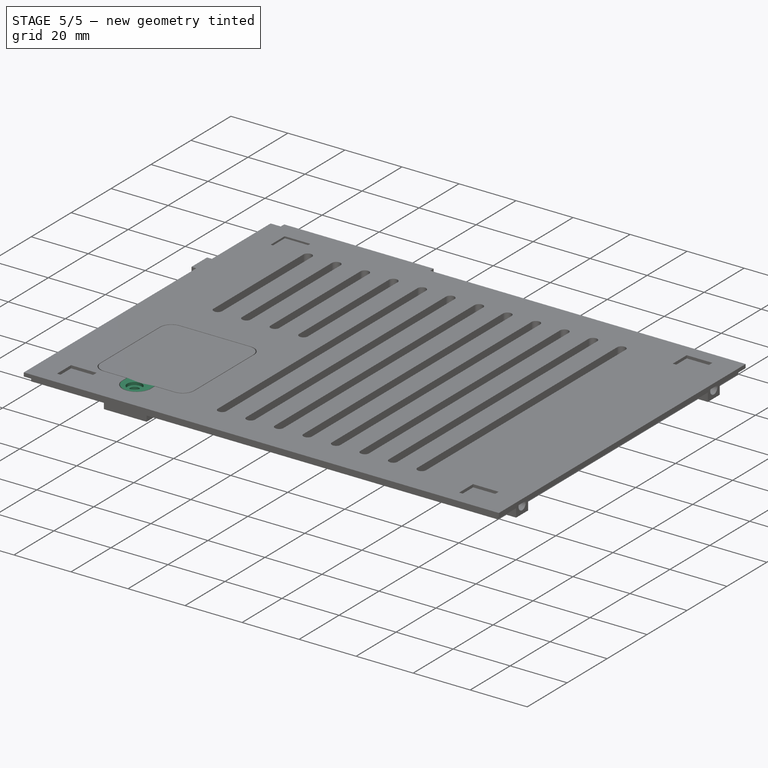
[diagram: stage 5 of 5 — iso view after this stage's code; geometry added in this stage tinted green]
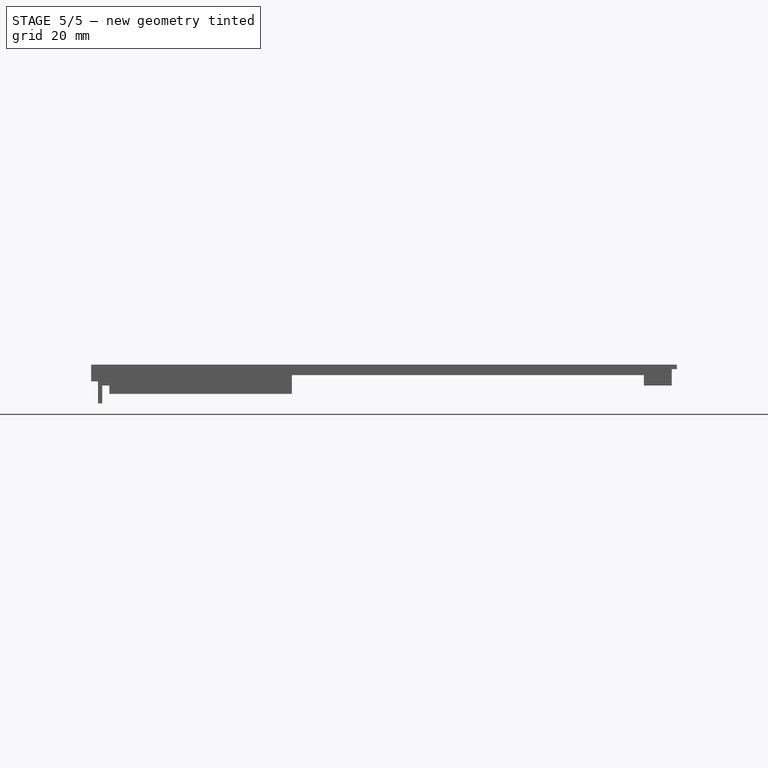
[diagram: stage 5 of 5 — front view after this stage's code; geometry added in this stage tinted green]
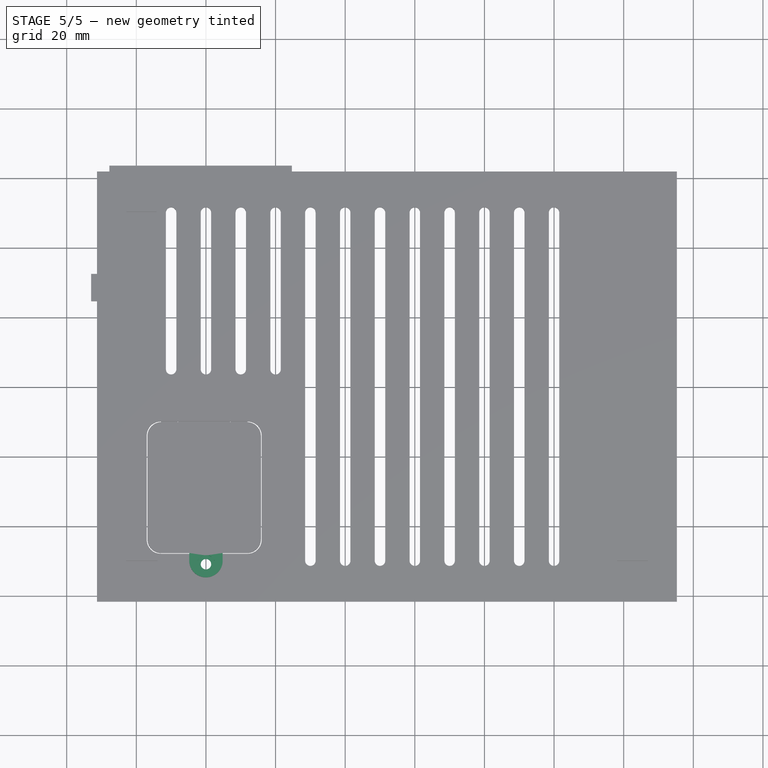
[diagram: stage 5 of 5 — top view after this stage's code; geometry added in this stage tinted green]
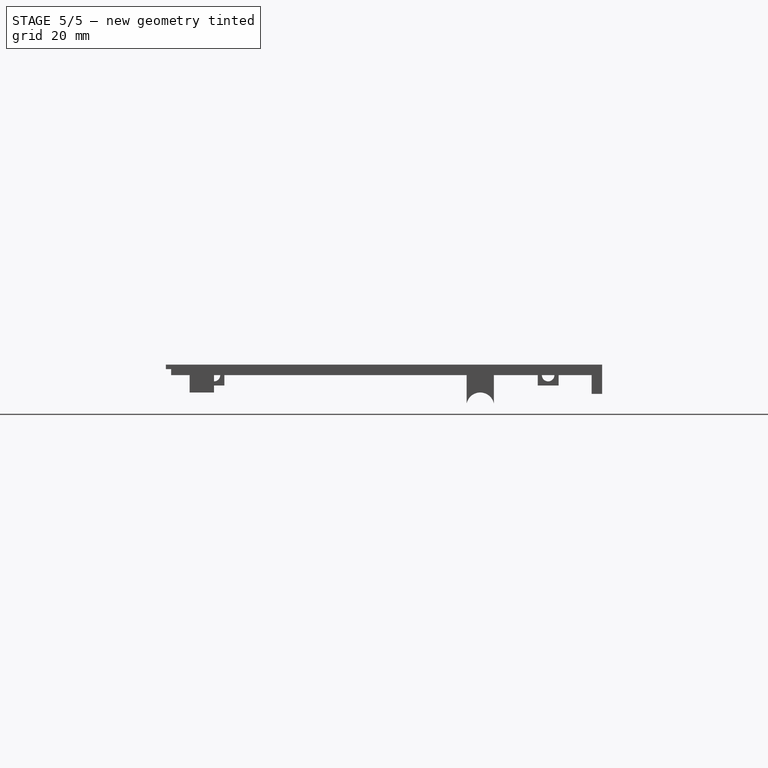
[diagram: stage 5 of 5 — right view after this stage's code; geometry added in this stage tinted green]
FEATURE [Sketcher::SketchObject] Sketch044  label="insert001"
  FullyConstrained = true
  MapMode = 5
  Placement = pos=(0,0,0) rot=(1,0,0;3.14159rad)
  Support = -> [Pad010]
  sketch-geometry (4):
    g0: LineSegment StartX=-68.1 StartY=15.2 StartZ=0 EndX=-68.1 EndY=10 EndZ=0
    g1: LineSegment StartX=-68.1 StartY=10 StartZ=0 EndX=-52.9 EndY=10 EndZ=0
    g2: LineSegment StartX=-52.9 StartY=10 StartZ=0 EndX=-52.9 EndY=15.2 EndZ=0
    g3: LineSegment StartX=-52.9 StartY=15.2 StartZ=0 EndX=-68.1 EndY=15.2 EndZ=0
  constraints (12):
    c: Coincident(g0,g1)
    c: Coincident(g1,g2)
    c: Coincident(g2,g3)
    c: Coincident(g3,g0)
    c: Vertical(g0)
    c: Vertical(g2)
    c: Horizontal(g1)
    c: Horizontal(g3)
    c: DistanceX(g3,g3) = 15.2
    c: DistanceY(g2,g2) = 5.2
    c: DistanceY(g-1,g1) = 10
    c: DistanceX(g1,g-1) = 52.9
FEATURE [PartDesign::Pocket] Pocket033  label="insert"
  BaseFeature = -> Pad010
  Direction = (0,0,1)
  Length = 1.6
  Length2 = 5
  Profile = -> Sketch044
  ReferenceAxis = -> Sketch044 [N_Axis]
  Refine = true
  Type = 0
FEATURE [Sketcher::SketchObject] Sketch045  label="door legs"
  FullyConstrained = true
  MapMode = 5
  Placement = pos=(0,0,0) rot=(1,0,0;3.14159rad)
  Support = -> [Pocket033]
  sketch-geometry (8):
    g0: LineSegment StartX=-52.9 StartY=11.2 StartZ=0 EndX=-52.9 EndY=5.2 EndZ=0
    g1: LineSegment StartX=-52.9 StartY=5.2 StartZ=0 EndX=-48.1 EndY=5.2 EndZ=0
    g2: LineSegment StartX=-48.1 StartY=5.2 StartZ=0 EndX=-48.1 EndY=11.2 EndZ=0
    g3: LineSegment StartX=-48.1 StartY=11.2 StartZ=0 EndX=-52.9 EndY=11.2 EndZ=0
    g4: LineSegment StartX=-68.1 StartY=11.2 StartZ=0 EndX=-72.9 EndY=11.2 EndZ=0
    g5: LineSegment StartX=-72.9 StartY=11.2 StartZ=0 EndX=-72.9 EndY=5.2 EndZ=0
    g6: LineSegment StartX=-72.9 StartY=5.2 StartZ=0 EndX=-68.1 EndY=5.2 EndZ=0
    g7: LineSegment StartX=-68.1 StartY=5.2 StartZ=0 EndX=-68.1 EndY=11.2 EndZ=0
  constraints (24):
    c: Coincident(g0,g1)
    c: Coincident(g1,g2)
    c: Coincident(g2,g3)
    c: Coincident(g3,g0)
    c: Vertical(g0)
    c: Vertical(g2)
    c: Horizontal(g1)
    c: Horizontal(g3)
    c: Coincident(g4,g5)
    c: Coincident(g5,g6)
    c: Coincident(g6,g7)
    c: Coincident(g7,g4)
    c: Horizontal(g4)
    c: Horizontal(g6)
    c: Vertical(g5)
    c: Vertical(g7)
    c: DistanceX(g3,g3) = 4.8
    c: DistanceX(g4,g4) = 4.8
    c: DistanceX(g2,g-1) = 48.1
    c: DistanceX(g6,g-1) = 68.1
    c: DistanceY(g7,g7) = 6
    c: DistanceY(g2,g2) = 6
    c: DistanceY(g-1,g1) = 5.2
    c: DistanceY(g-1,g6) = 5.2
FEATURE [PartDesign::Pad] Pad011  label="door legs001"
  BaseFeature = -> Pocket033
  Direction = (0,0,-1)
  Length = 1.4
  Length2 = 10
  Profile = -> Sketch045
  ReferenceAxis = -> Sketch045 [N_Axis]
  Refine = true
  Reversed = true
  Type = 0
FEATURE [Sketcher::SketchObject] Sketch046  label="screw post"
  FullyConstrained = true
  MapMode = 5
  Placement = pos=(0,0,3) rot=(0,0,1;0rad)
  Support = -> [Pad011]
  sketch-geometry (4):
    g0: ArcOfCircle CenterX=-60 CenterY=-50 CenterZ=0 NormalX=0 NormalY=0 NormalZ=1 AngleXU=0 Radius=4.8 StartAngle=3.14159 EndAngle=6.28319
    g1: LineSegment StartX=-64.8 StartY=-50 StartZ=0 EndX=-64.8 EndY=-47.8 EndZ=0
    g2: LineSegment StartX=-64.8 StartY=-47.8 StartZ=0 EndX=-55.2 EndY=-47.8 EndZ=0
    g3: LineSegment StartX=-55.2 StartY=-47.8 StartZ=0 EndX=-55.2 EndY=-50 EndZ=0
  constraints (13):
    c: Diameter(g0) = 9.6
    c: Horizontal(g0,g0)
    c: Horizontal(g0,g0)
    c: DistanceY(g0,g-1) = 50
    c: DistanceX(g0,g-1) = 60
    c: Coincident(g1,g0)
    c: Vertical(g1)
    c: Coincident(g2,g1)
    c: Horizontal(g2)
    c: Coincident(g3,g2)
    c: Coincident(g3,g0)
    c: Vertical(g3)
    c: DistanceY(g3,g3) = 2.2
FEATURE [PartDesign::Pad] Pad012  label="screw post001"
  BaseFeature = -> Pad011
  Direction = (0,0,1)
  Length = 2.9
  Length2 = 10
  Profile = -> Sketch046
  ReferenceAxis = -> Sketch046 [N_Axis]
  Refine = true
  Reversed = true
  Type = 0
FEATURE [Sketcher::SketchObject] Sketch047  label="screw hole"
  FullyConstrained = true
  MapMode = 5
  Placement = pos=(0,0,3) rot=(0,0,1;0rad)
  Support = -> [Pad012]
  sketch-geometry (1):
    g0: Circle CenterX=-60 CenterY=-51 CenterZ=0 NormalX=0 NormalY=0 NormalZ=1 AngleXU=0 Radius=1.5
  constraints (3):
    c: Diameter(g0) = 3
    c: DistanceX(g0,g-1) = 60
    c: DistanceY(g0,g-1) = 51
FEATURE [PartDesign::Pocket] Pocket034  label="screw hole001"
  BaseFeature = -> Pad012
  Direction = (0,0,-1)
  Length = 5
  Length2 = 5
  Profile = -> Sketch047
  ReferenceAxis = -> Sketch047 [N_Axis]
  Refine = true
  Type = 0
FEATURE [Sketcher::SketchObject] Sketch048  label="screw insert"
  FullyConstrained = true
  MapMode = 5
  Placement = pos=(0,0,3) rot=(0,0,1;0rad)
  Support = -> [Pocket034]
  sketch-geometry (1):
    g0: Circle CenterX=-60 CenterY=-51 CenterZ=0 NormalX=0 NormalY=0 NormalZ=1 AngleXU=0 Radius=2.6
  constraints (3):
    c: Diameter(g0) = 5.2
    c: DistanceY(g0,g-1) = 51
    c: DistanceX(g0,g-1) = 60
FEATURE [PartDesign::Pocket] Pocket035  label="screw insert001"
  BaseFeature = -> Pocket034
  Direction = (0,0,-1)
  Length = 1
  Length2 = 5
  Profile = -> Sketch048
  ReferenceAxis = -> Sketch048 [N_Axis]
  Refine = true
  Type = 0
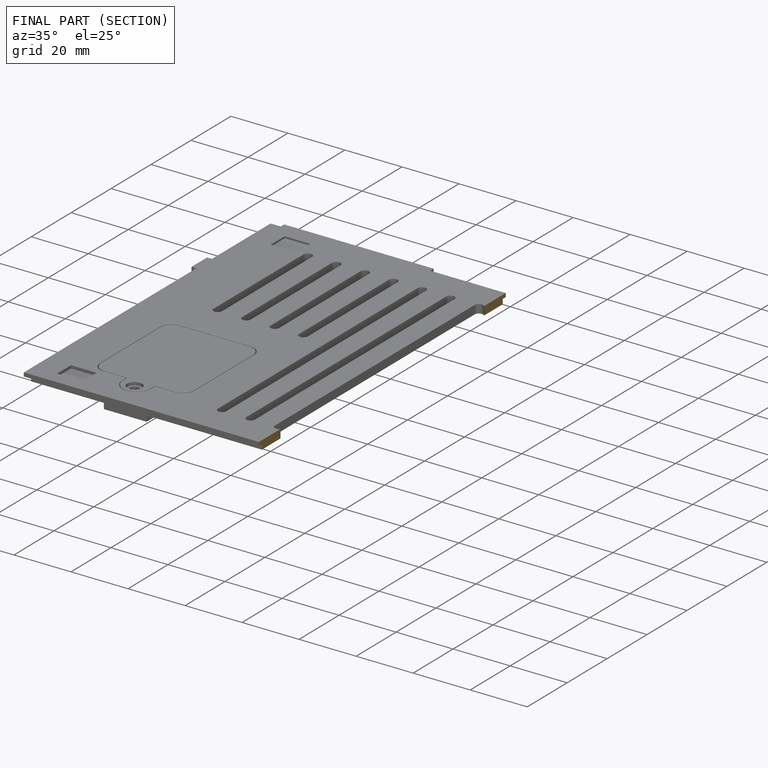
[diagram: finished part — half-section view (interior)]
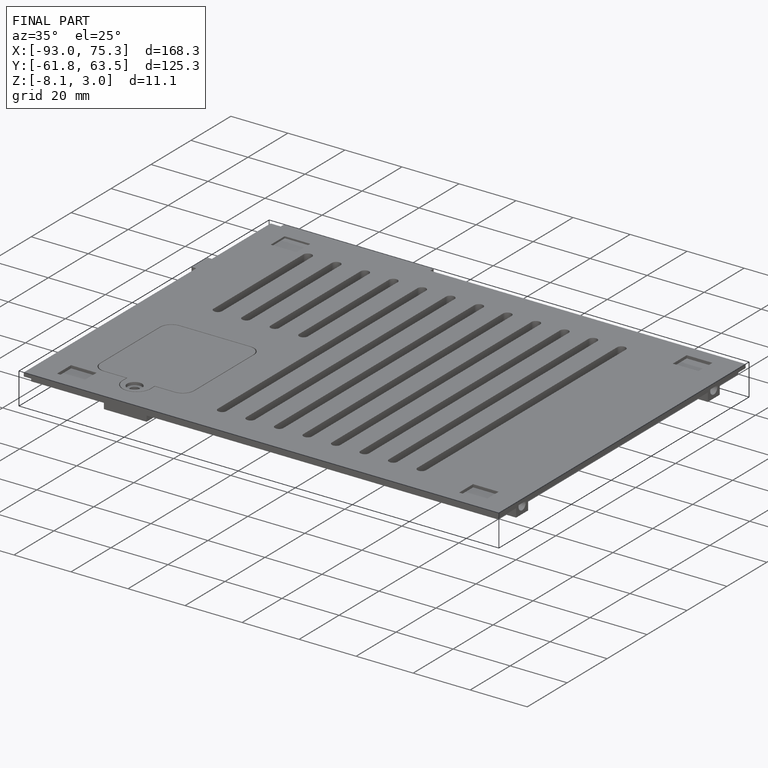
[diagram: finished part — iso view with bounding-box wireframe]
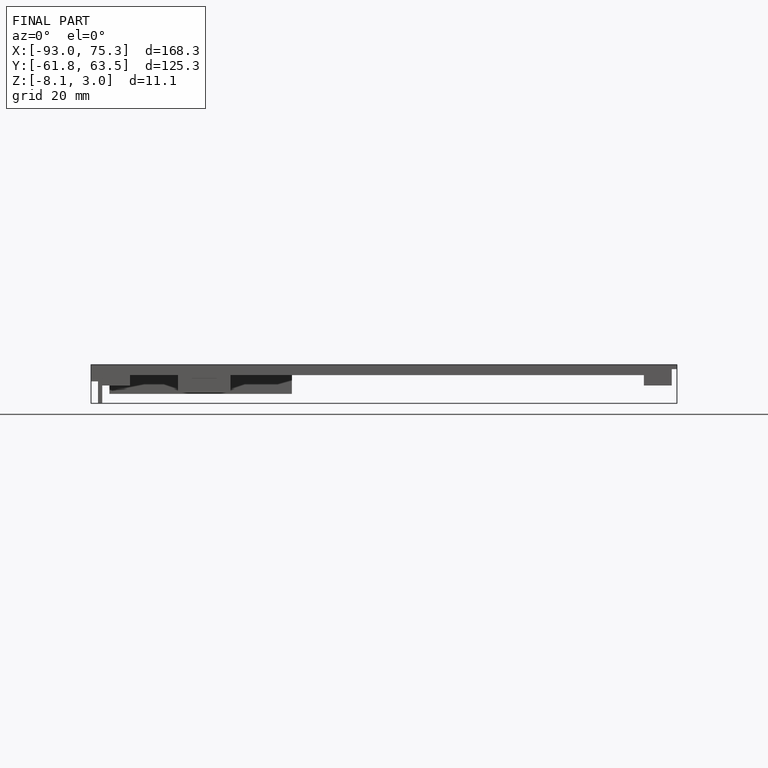
[diagram: finished part — front view with bounding-box wireframe]
